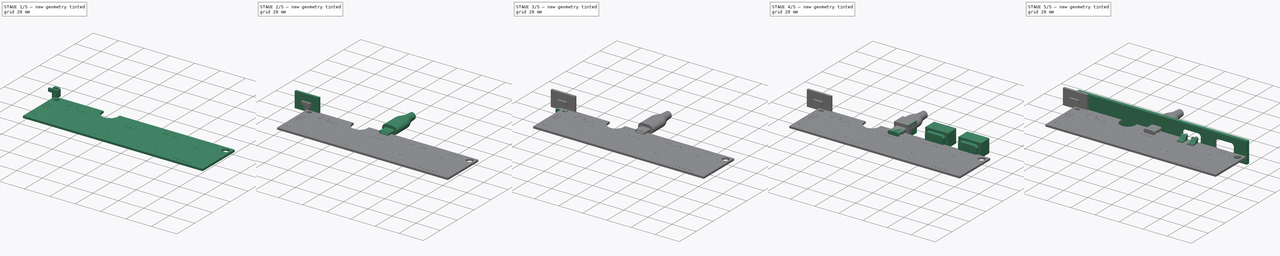
[diagram: build sequence overview — one tinted view per stage of 5, left to right]
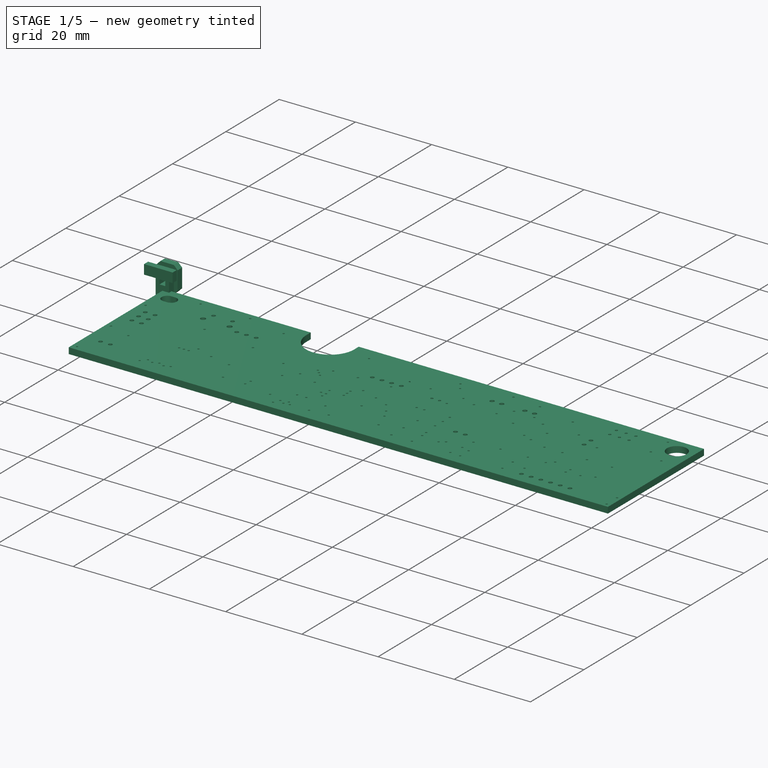
[diagram: stage 1 of 5 — iso view after this stage's code; geometry added in this stage tinted green]
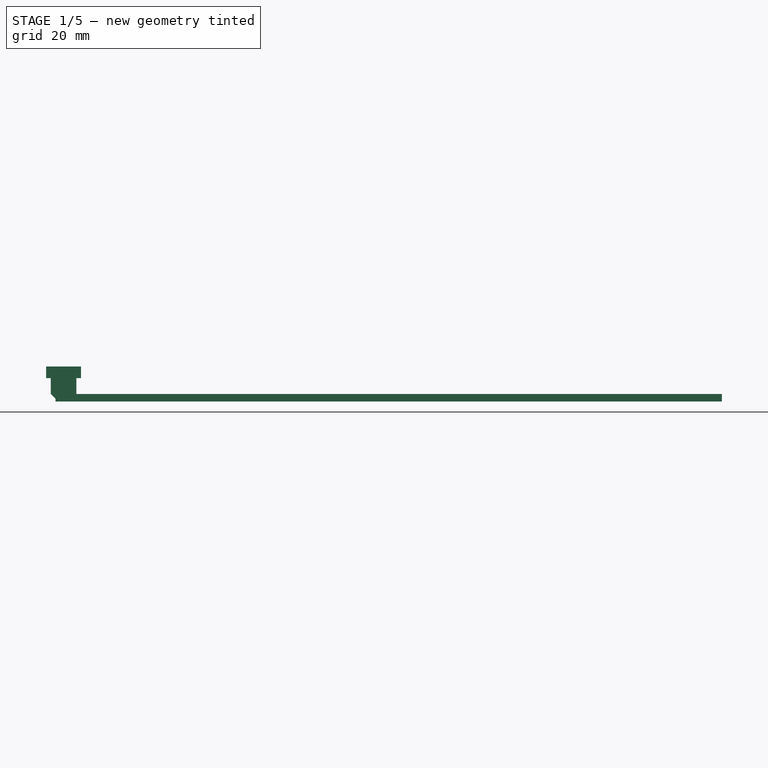
[diagram: stage 1 of 5 — front view after this stage's code; geometry added in this stage tinted green]
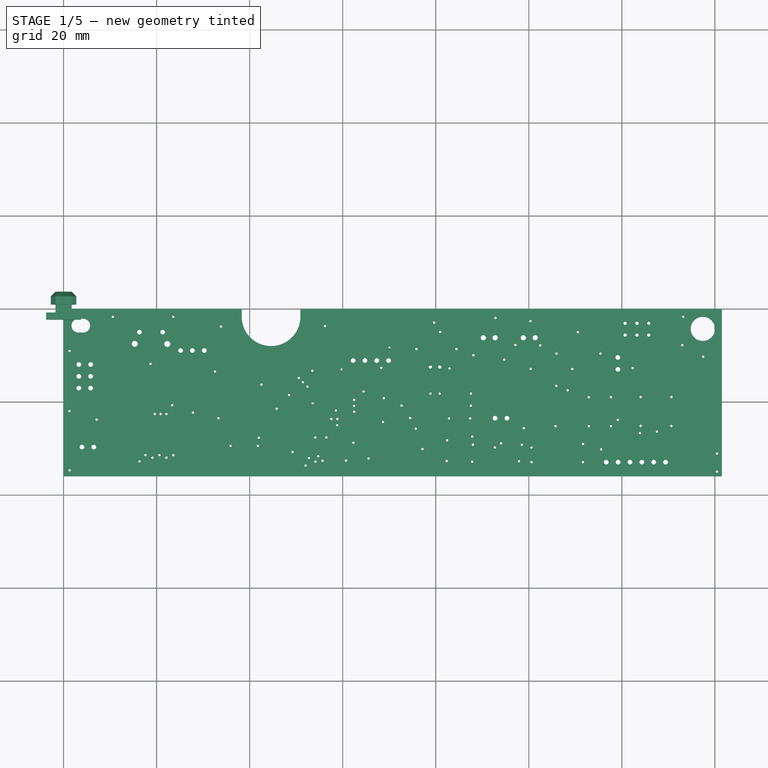
[diagram: stage 1 of 5 — top view after this stage's code; geometry added in this stage tinted green]
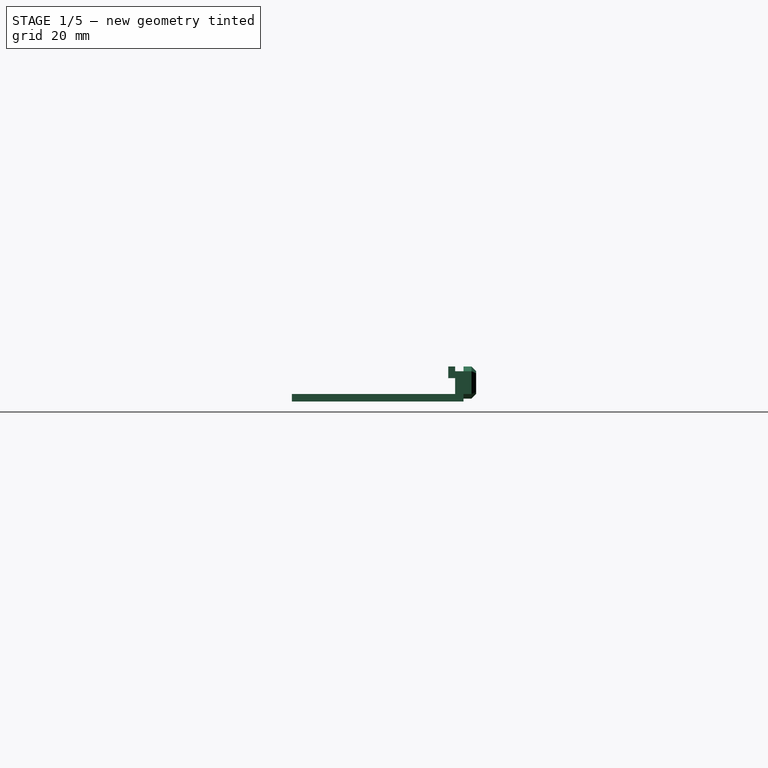
[diagram: stage 1 of 5 — right view after this stage's code; geometry added in this stage tinted green]
FCSTD DOCUMENT  (FreeCAD 0.17R13509 (Git))
Label: hhkb-alt-cad-1.8
License: All rights reserved
LicenseURL: http://en.wikipedia.org/wiki/All_rights_reserved
objects: Sketcher::SketchObject×32, PartDesign::Pad×21, PartDesign::Body×14, Part::FeaturePython×11, PartDesign::Chamfer×5, PartDesign::Mirrored×4, PartDesign::Pocket×3, App::Part×2, App::VRMLObject×2, PartDesign::AdditiveLoft×2, App::DocumentObjectGroup×2, PartDesign::MultiTransform×1, PartDesign::Fillet×1, PartDesign::Revolution×1, Part::MultiFuse×1, Part::Cut×1, PartDesign::Thickness×1, PartDesign::AdditivePipe×1, PartDesign::Plane×1
note: 128 computed .brp shape members not serialized (recipe doc carries the construction recipe); baked Part::Feature solids carry a one-line shape summary decoded from their .brp

FEATURE [Sketcher::SketchObject] PCB_Border  label="PCB_Border_HHKB"
  MapMode = 5
  Placement = pos=(-76.9,80.8,0) rot=(0,0,1;0rad)
  expr: Placement.Base.y = -PCB_Border_HHKB.Constraints.Y
  expr: Placement.Base.x = -PCB_Border_HHKB.Constraints.X
  sketch-geometry (16):
    g0: LineSegment StartX=115.2 StartY=-80.8 StartZ=0 EndX=115.2 EndY=-82.5 EndZ=0
    g1: LineSegment StartX=80.1 StartY=-85.9 StartZ=0 EndX=81.1 EndY=-85.9 EndZ=0
    g2: LineSegment StartX=81.1 StartY=-82.9 StartZ=0 EndX=80.1 EndY=-82.9 EndZ=0
    g3: LineSegment StartX=127.8 StartY=-82.5 StartZ=0 EndX=127.8 EndY=-80.8 EndZ=0
    g4: LineSegment StartX=127.8 StartY=-80.8 StartZ=0 EndX=218.4 EndY=-80.8 EndZ=0
    g5: LineSegment StartX=76.9 StartY=-80.8 StartZ=0 EndX=115.2 EndY=-80.8 EndZ=0
    g6: LineSegment StartX=76.9 StartY=-116.8 StartZ=0 EndX=76.9 EndY=-80.8 EndZ=0
    g7: LineSegment StartX=218.4 StartY=-116.8 StartZ=0 EndX=76.9 EndY=-116.8 EndZ=0
    g8: LineSegment StartX=218.4 StartY=-80.8 StartZ=0 EndX=218.4 EndY=-116.8 EndZ=0
    g9: Circle CenterX=214.3 CenterY=-85.1 CenterZ=0 NormalX=0 NormalY=0 NormalZ=1 AngleXU=0 Radius=2.6
    g10: ArcOfCircle CenterX=81.1 CenterY=-84.4 CenterZ=0 NormalX=0 NormalY=0 NormalZ=1 AngleXU=0 Radius=1.5 StartAngle=0 EndAngle=1.5708
    g11: ArcOfCircle CenterX=81.1 CenterY=-84.4 CenterZ=0 NormalX=0 NormalY=0 NormalZ=1 AngleXU=0 Radius=1.5 StartAngle=4.71239 EndAngle=6.28319
    g12: ArcOfCircle CenterX=80.1 CenterY=-84.4 CenterZ=0 NormalX=0 NormalY=0 NormalZ=1 AngleXU=0 Radius=1.5 StartAngle=3.14159 EndAngle=4.71239
    g13: ArcOfCircle CenterX=80.1 CenterY=-84.4 CenterZ=0 NormalX=0 NormalY=0 NormalZ=1 AngleXU=0 Radius=1.5 StartAngle=1.5708 EndAngle=3.14159
    g14: ArcOfCircle CenterX=121.5 CenterY=-82.5 CenterZ=0 NormalX=0 NormalY=0 NormalZ=1 AngleXU=0 Radius=6.3 StartAngle=3.14159 EndAngle=4.71239
    g15: ArcOfCircle CenterX=121.5 CenterY=-82.5 CenterZ=0 NormalX=0 NormalY=0 NormalZ=1 AngleXU=0 Radius=6.3 StartAngle=4.71239 EndAngle=6.28319
  constraints (2):
    c: DistanceX(g5) = 76.9  'X'
    c: DistanceY(g5) = -80.8  'Y'
FEATURE [Sketcher::SketchObject] PCB_Holes  label="PCB_Holes_HHKB"
  MapMode = 5
  Placement = pos=(-76.9,80.8,0) rot=(0,0,1;0rad)
  expr: Placement.Base.y = -PCB_Border_HHKB.Constraints.Y
  expr: Placement.Base.x = -PCB_Border_HHKB.Constraints.X
  sketch-geometry (160):
    g0: Circle CenterX=196.05 CenterY=-104.65 CenterZ=0 NormalX=0 NormalY=0 NormalZ=1 AngleXU=0 Radius=0.254
    g1: Circle CenterX=170.95 CenterY=-109.7 CenterZ=0 NormalX=0 NormalY=0 NormalZ=1 AngleXU=0 Radius=0.254
    g2: Circle CenterX=174.8 CenterY=-113.55 CenterZ=0 NormalX=0 NormalY=0 NormalZ=1 AngleXU=0 Radius=0.254
    g3: Circle CenterX=139.35 CenterY=-102.9 CenterZ=0 NormalX=0 NormalY=0 NormalZ=1 AngleXU=0 Radius=0.254
    g4: Circle CenterX=96 CenterY=-112.8 CenterZ=0 NormalX=0 NormalY=0 NormalZ=1 AngleXU=0 Radius=0.254
    g5: Circle CenterX=96.5 CenterY=-103.4 CenterZ=0 NormalX=0 NormalY=0 NormalZ=1 AngleXU=0 Radius=0.254
    g6: Circle CenterX=97.5 CenterY=-112.25 CenterZ=0 NormalX=0 NormalY=0 NormalZ=1 AngleXU=0 Radius=0.254
    g7: Circle CenterX=135.43 CenterY=-102.65 CenterZ=0 NormalX=0 NormalY=0 NormalZ=1 AngleXU=0 Radius=0.254
    g8: Circle CenterX=97.75 CenterY=-103.4 CenterZ=0 NormalX=0 NormalY=0 NormalZ=1 AngleXU=0 Radius=0.254
    g9: Circle CenterX=139.35 CenterY=-101.65 CenterZ=0 NormalX=0 NormalY=0 NormalZ=1 AngleXU=0 Radius=0.254
    g10: Circle CenterX=99 CenterY=-112.8 CenterZ=0 NormalX=0 NormalY=0 NormalZ=1 AngleXU=0 Radius=0.254
    g11: Circle CenterX=99 CenterY=-103.4 CenterZ=0 NormalX=0 NormalY=0 NormalZ=1 AngleXU=0 Radius=0.254
    g12: Circle CenterX=100.5 CenterY=-112.25 CenterZ=0 NormalX=0 NormalY=0 NormalZ=1 AngleXU=0 Radius=0.254
    g13: Circle CenterX=139.35 CenterY=-100.35 CenterZ=0 NormalX=0 NormalY=0 NormalZ=1 AngleXU=0 Radius=0.254
    g14: Circle CenterX=94.5 CenterY=-112.25 CenterZ=0 NormalX=0 NormalY=0 NormalZ=1 AngleXU=0 Radius=0.254
    g15: Circle CenterX=134.45 CenterY=-104.46 CenterZ=0 NormalX=0 NormalY=0 NormalZ=1 AngleXU=0 Radius=0.254
    g16: Circle CenterX=130.375 CenterY=-94.1 CenterZ=0 NormalX=0 NormalY=0 NormalZ=1 AngleXU=0 Radius=0.254
    g17: Circle CenterX=125.375 CenterY=-99.3 CenterZ=0 NormalX=0 NormalY=0 NormalZ=1 AngleXU=0 Radius=0.254
    g18: Circle CenterX=118.85 CenterY=-108.5 CenterZ=0 NormalX=0 NormalY=0 NormalZ=1 AngleXU=0 Radius=0.254
    g19: Circle CenterX=122.7 CenterY=-102.25 CenterZ=0 NormalX=0 NormalY=0 NormalZ=1 AngleXU=0 Radius=0.254
    g20: Circle CenterX=204.44 CenterY=-107.18 CenterZ=0 NormalX=0 NormalY=0 NormalZ=1 AngleXU=0 Radius=0.254
    g21: Circle CenterX=155.75 CenterY=-99 CenterZ=0 NormalX=0 NormalY=0 NormalZ=1 AngleXU=0 Radius=0.254
    g22: Circle CenterX=152.6 CenterY=-106.55 CenterZ=0 NormalX=0 NormalY=0 NormalZ=1 AngleXU=0 Radius=0.254
    g23: Circle CenterX=175.85 CenterY=-106.45 CenterZ=0 NormalX=0 NormalY=0 NormalZ=1 AngleXU=0 Radius=0.254
    g24: Circle CenterX=192.45 CenterY=-111 CenterZ=0 NormalX=0 NormalY=0 NormalZ=1 AngleXU=0 Radius=0.254
    g25: Circle CenterX=136.7 CenterY=-93.8 CenterZ=0 NormalX=0 NormalY=0 NormalZ=1 AngleXU=0 Radius=0.254
    g26: Circle CenterX=177.5 CenterY=-110.6 CenterZ=0 NormalX=0 NormalY=0 NormalZ=1 AngleXU=0 Radius=0.254
    g27: Circle CenterX=127.45 CenterY=-95.65 CenterZ=0 NormalX=0 NormalY=0 NormalZ=1 AngleXU=0 Radius=0.254
    g28: Circle CenterX=164.3 CenterY=-104.35 CenterZ=0 NormalX=0 NormalY=0 NormalZ=1 AngleXU=0 Radius=0.254
    g29: Circle CenterX=159.75 CenterY=-104.35 CenterZ=0 NormalX=0 NormalY=0 NormalZ=1 AngleXU=0 Radius=0.254
    g30: Circle CenterX=139.2 CenterY=-109.575 CenterZ=0 NormalX=0 NormalY=0 NormalZ=1 AngleXU=0 Radius=0.254
    g31: Circle CenterX=177.25 CenterY=-83.45 CenterZ=0 NormalX=0 NormalY=0 NormalZ=1 AngleXU=0 Radius=0.254
    g32: Circle CenterX=164.725 CenterY=-113.65 CenterZ=0 NormalX=0 NormalY=0 NormalZ=1 AngleXU=0 Radius=0.254
    g33: Circle CenterX=132.56 CenterY=-113.44 CenterZ=0 NormalX=0 NormalY=0 NormalZ=1 AngleXU=0 Radius=0.254
    g34: Circle CenterX=177.5 CenterY=-113.75 CenterZ=0 NormalX=0 NormalY=0 NormalZ=1 AngleXU=0 Radius=0.254
    g35: Circle CenterX=128.35 CenterY=-96.55 CenterZ=0 NormalX=0 NormalY=0 NormalZ=1 AngleXU=0 Radius=0.254
    g36: Circle CenterX=164.725 CenterY=-108.25 CenterZ=0 NormalX=0 NormalY=0 NormalZ=1 AngleXU=0 Radius=0.254
    g37: Circle CenterX=129.3 CenterY=-97.5 CenterZ=0 NormalX=0 NormalY=0 NormalZ=1 AngleXU=0 Radius=0.254
    g38: Circle CenterX=209.9 CenterY=-88.6 CenterZ=0 NormalX=0 NormalY=0 NormalZ=1 AngleXU=0 Radius=0.254
    g39: Circle CenterX=210.1 CenterY=-82.5 CenterZ=0 NormalX=0 NormalY=0 NormalZ=1 AngleXU=0 Radius=0.254
    g40: Circle CenterX=148.4 CenterY=-88.05 CenterZ=0 NormalX=0 NormalY=0 NormalZ=1 AngleXU=0 Radius=0.254
    g41: Circle CenterX=133.1 CenterY=-84.5 CenterZ=0 NormalX=0 NormalY=0 NormalZ=1 AngleXU=0 Radius=0.254
    g42: Circle CenterX=95.6 CenterY=-92.6 CenterZ=0 NormalX=0 NormalY=0 NormalZ=1 AngleXU=0 Radius=0.254
    g43: Circle CenterX=145.2 CenterY=-93.5 CenterZ=0 NormalX=0 NormalY=0 NormalZ=1 AngleXU=0 Radius=0.254
    g44: Circle CenterX=164.45 CenterY=-101.6 CenterZ=0 NormalX=0 NormalY=0 NormalZ=1 AngleXU=0 Radius=0.254
    g45: Circle CenterX=84 CenterY=-104.6 CenterZ=0 NormalX=0 NormalY=0 NormalZ=1 AngleXU=0 Radius=0.254
    g46: Circle CenterX=182.85 CenterY=-90.4 CenterZ=0 NormalX=0 NormalY=0 NormalZ=1 AngleXU=0 Radius=0.254
    g47: Circle CenterX=179.35 CenterY=-88.65 CenterZ=0 NormalX=0 NormalY=0 NormalZ=1 AngleXU=0 Radius=0.254
    g48: Circle CenterX=149.55 CenterY=-101.6 CenterZ=0 NormalX=0 NormalY=0 NormalZ=1 AngleXU=0 Radius=0.254
    g49: Circle CenterX=164.45 CenterY=-99 CenterZ=0 NormalX=0 NormalY=0 NormalZ=1 AngleXU=0 Radius=0.254
    g50: Circle CenterX=161.35 CenterY=-89.45 CenterZ=0 NormalX=0 NormalY=0 NormalZ=1 AngleXU=0 Radius=0.254
    g51: Circle CenterX=159.35 CenterY=-109.05 CenterZ=0 NormalX=0 NormalY=0 NormalZ=1 AngleXU=0 Radius=0.254
    g52: Circle CenterX=110.75 CenterY=-84.6 CenterZ=0 NormalX=0 NormalY=0 NormalZ=1 AngleXU=0 Radius=0.254
    g53: Circle CenterX=207.57 CenterY=-99.77 CenterZ=0 NormalX=0 NormalY=0 NormalZ=1 AngleXU=0 Radius=0.254
    g54: Circle CenterX=142.45 CenterY=-112.95 CenterZ=0 NormalX=0 NormalY=0 NormalZ=1 AngleXU=0 Radius=0.254
    g55: Circle CenterX=87.5 CenterY=-82.5 CenterZ=0 NormalX=0 NormalY=0 NormalZ=1 AngleXU=0 Radius=0.254
    g56: Circle CenterX=135.7 CenterY=-105.8 CenterZ=0 NormalX=0 NormalY=0 NormalZ=1 AngleXU=0 Radius=0.254
    g57: Circle CenterX=130.45 CenterY=-101.047 CenterZ=0 NormalX=0 NormalY=0 NormalZ=1 AngleXU=0 Radius=0.254
    g58: Circle CenterX=137.6 CenterY=-113.4 CenterZ=0 NormalX=0 NormalY=0 NormalZ=1 AngleXU=0 Radius=0.254
    g59: Circle CenterX=128.92 CenterY=-114.48 CenterZ=0 NormalX=0 NormalY=0 NormalZ=1 AngleXU=0 Radius=0.254
    g60: Circle CenterX=214.375 CenterY=-91.075 CenterZ=0 NormalX=0 NormalY=0 NormalZ=1 AngleXU=0 Radius=0.254
    g61: Circle CenterX=119.425 CenterY=-97.075 CenterZ=0 NormalX=0 NormalY=0 NormalZ=1 AngleXU=0 Radius=0.254
    g62: Circle CenterX=100.5 CenterY=-82.5 CenterZ=0 NormalX=0 NormalY=0 NormalZ=1 AngleXU=0 Radius=0.254
    g63: Circle CenterX=189.8 CenterY=-99.8 CenterZ=0 NormalX=0 NormalY=0 NormalZ=1 AngleXU=0 Radius=0.254
    g64: Circle CenterX=189.8 CenterY=-106 CenterZ=0 NormalX=0 NormalY=0 NormalZ=1 AngleXU=0 Radius=0.254
    g65: Circle CenterX=169.75 CenterY=-82.75 CenterZ=0 NormalX=0 NormalY=0 NormalZ=1 AngleXU=0 Radius=0.254
    g66: Circle CenterX=207.55 CenterY=-105.95 CenterZ=0 NormalX=0 NormalY=0 NormalZ=1 AngleXU=0 Radius=0.254
    g67: Circle CenterX=194.55 CenterY=-106 CenterZ=0 NormalX=0 NormalY=0 NormalZ=1 AngleXU=0 Radius=0.254
    g68: Circle CenterX=200.95 CenterY=-99.75 CenterZ=0 NormalX=0 NormalY=0 NormalZ=1 AngleXU=0 Radius=0.254
    g69: Circle CenterX=194.55 CenterY=-99.8 CenterZ=0 NormalX=0 NormalY=0 NormalZ=1 AngleXU=0 Radius=0.254
    g70: Circle CenterX=200.95 CenterY=-105.95 CenterZ=0 NormalX=0 NormalY=0 NormalZ=1 AngleXU=0 Radius=0.254
    g71: Circle CenterX=188.55 CenterY=-109.85 CenterZ=0 NormalX=0 NormalY=0 NormalZ=1 AngleXU=0 Radius=0.254
    g72: Circle CenterX=188.55 CenterY=-113.75 CenterZ=0 NormalX=0 NormalY=0 NormalZ=1 AngleXU=0 Radius=0.254
    g73: Circle CenterX=182.8 CenterY=-97.35 CenterZ=0 NormalX=0 NormalY=0 NormalZ=1 AngleXU=0 Radius=0.254
    g74: Circle CenterX=186.25 CenterY=-93.7 CenterZ=0 NormalX=0 NormalY=0 NormalZ=1 AngleXU=0 Radius=0.254
    g75: Circle CenterX=185.25 CenterY=-98.3 CenterZ=0 NormalX=0 NormalY=0 NormalZ=1 AngleXU=0 Radius=0.254
    g76: Circle CenterX=156.55 CenterY=-83.75 CenterZ=0 NormalX=0 NormalY=0 NormalZ=1 AngleXU=0 Radius=0.254
    g77: Circle CenterX=152.75 CenterY=-89.45 CenterZ=0 NormalX=0 NormalY=0 NormalZ=1 AngleXU=0 Radius=0.254
    g78: Circle CenterX=164.9 CenterY=-110 CenterZ=0 NormalX=0 NormalY=0 NormalZ=1 AngleXU=0 Radius=0.254
    g79: Circle CenterX=182.65 CenterY=-106 CenterZ=0 NormalX=0 NormalY=0 NormalZ=1 AngleXU=0 Radius=0.254
    g80: Circle CenterX=175.4 CenterY=-110 CenterZ=0 NormalX=0 NormalY=0 NormalZ=1 AngleXU=0 Radius=0.254
    g81: Circle CenterX=169.6 CenterY=-110.6 CenterZ=0 NormalX=0 NormalY=0 NormalZ=1 AngleXU=0 Radius=0.254
    g82: Circle CenterX=93.25 CenterY=-113.6 CenterZ=0 NormalX=0 NormalY=0 NormalZ=1 AngleXU=0 Radius=0.254
    g83: Circle CenterX=78.2 CenterY=-115.5 CenterZ=0 NormalX=0 NormalY=0 NormalZ=1 AngleXU=0 Radius=0.254
    g84: Circle CenterX=78.15 CenterY=-102.75 CenterZ=0 NormalX=0 NormalY=0 NormalZ=1 AngleXU=0 Radius=0.254
    g85: Circle CenterX=78.2 CenterY=-89.85 CenterZ=0 NormalX=0 NormalY=0 NormalZ=1 AngleXU=0 Radius=0.254
    g86: Circle CenterX=118.65 CenterY=-110.25 CenterZ=0 NormalX=0 NormalY=0 NormalZ=1 AngleXU=0 Radius=0.254
    g87: Circle CenterX=112.8 CenterY=-110.25 CenterZ=0 NormalX=0 NormalY=0 NormalZ=1 AngleXU=0 Radius=0.254
    g88: Circle CenterX=217.35 CenterY=-115.8 CenterZ=0 NormalX=0 NormalY=0 NormalZ=1 AngleXU=0 Radius=0.254
    g89: Circle CenterX=217.35 CenterY=-111.9 CenterZ=0 NormalX=0 NormalY=0 NormalZ=1 AngleXU=0 Radius=0.254
    g90: Circle CenterX=171.6 CenterY=-91.7 CenterZ=0 NormalX=0 NormalY=0 NormalZ=1 AngleXU=0 Radius=0.254
    g91: Circle CenterX=165 CenterY=-90.75 CenterZ=0 NormalX=0 NormalY=0 NormalZ=1 AngleXU=0 Radius=0.254
    g92: Circle CenterX=126.1 CenterY=-111.55 CenterZ=0 NormalX=0 NormalY=0 NormalZ=1 AngleXU=0 Radius=0.254
    g93: Circle CenterX=187.45 CenterY=-85.8 CenterZ=0 NormalX=0 NormalY=0 NormalZ=1 AngleXU=0 Radius=0.254
    g94: Circle CenterX=192.3 CenterY=-90.4 CenterZ=0 NormalX=0 NormalY=0 NormalZ=1 AngleXU=0 Radius=0.254
    g95: Circle CenterX=141.4 CenterY=-98.55 CenterZ=0 NormalX=0 NormalY=0 NormalZ=1 AngleXU=0 Radius=0.254
    g96: Circle CenterX=109.45 CenterY=-94.25 CenterZ=0 NormalX=0 NormalY=0 NormalZ=1 AngleXU=0 Radius=0.254
    g97: Circle CenterX=100.25 CenterY=-101.5 CenterZ=0 NormalX=0 NormalY=0 NormalZ=1 AngleXU=0 Radius=0.254
    g98: Circle CenterX=104.7 CenterY=-103.1 CenterZ=0 NormalX=0 NormalY=0 NormalZ=1 AngleXU=0 Radius=0.254
    g99: Circle CenterX=110.2 CenterY=-104.3 CenterZ=0 NormalX=0 NormalY=0 NormalZ=1 AngleXU=0 Radius=0.254
    g100: Circle CenterX=177.3 CenterY=-93.7 CenterZ=0 NormalX=0 NormalY=0 NormalZ=1 AngleXU=0 Radius=0.254
    g101: Circle CenterX=174 CenterY=-88.55 CenterZ=0 NormalX=0 NormalY=0 NormalZ=1 AngleXU=0 Radius=0.254
    g102: Circle CenterX=151.4 CenterY=-104.25 CenterZ=0 NormalX=0 NormalY=0 NormalZ=1 AngleXU=0 Radius=0.254
    g103: Circle CenterX=145.55 CenterY=-105.1 CenterZ=0 NormalX=0 NormalY=0 NormalZ=1 AngleXU=0 Radius=0.254
    g104: Circle CenterX=135.75 CenterY=-104.45 CenterZ=0 NormalX=0 NormalY=0 NormalZ=1 AngleXU=0 Radius=0.254
    g105: Circle CenterX=145.75 CenterY=-100 CenterZ=0 NormalX=0 NormalY=0 NormalZ=1 AngleXU=0 Radius=0.254
    g106: Circle CenterX=129.65 CenterY=-112.87 CenterZ=0 NormalX=0 NormalY=0 NormalZ=1 AngleXU=0 Radius=0.254
    g107: Circle CenterX=199.21 CenterY=-93.52 CenterZ=0 NormalX=0 NormalY=0 NormalZ=1 AngleXU=0 Radius=0.254
    g108: Circle CenterX=159.85 CenterY=-93.6 CenterZ=0 NormalX=0 NormalY=0 NormalZ=1 AngleXU=0 Radius=0.254
    g109: Circle CenterX=157.75 CenterY=-99 CenterZ=0 NormalX=0 NormalY=0 NormalZ=1 AngleXU=0 Radius=0.254
    g110: Circle CenterX=131 CenterY=-108.45 CenterZ=0 NormalX=0 NormalY=0 NormalZ=1 AngleXU=0 Radius=0.254
    g111: Circle CenterX=157.85 CenterY=-85.75 CenterZ=0 NormalX=0 NormalY=0 NormalZ=1 AngleXU=0 Radius=0.254
    g112: Circle CenterX=131.02 CenterY=-113.65 CenterZ=0 NormalX=0 NormalY=0 NormalZ=1 AngleXU=0 Radius=0.254
    g113: Circle CenterX=200.81 CenterY=-107.52 CenterZ=0 NormalX=0 NormalY=0 NormalZ=1 AngleXU=0 Radius=0.254
    g114: Circle CenterX=131.65 CenterY=-112.45 CenterZ=0 NormalX=0 NormalY=0 NormalZ=1 AngleXU=0 Radius=0.254
    g115: Circle CenterX=159.25 CenterY=-113.5 CenterZ=0 NormalX=0 NormalY=0 NormalZ=1 AngleXU=0 Radius=0.254
    g116: Circle CenterX=154.05 CenterY=-110.9 CenterZ=0 NormalX=0 NormalY=0 NormalZ=1 AngleXU=0 Radius=0.254
    g117: Circle CenterX=133.37 CenterY=-108.43 CenterZ=0 NormalX=0 NormalY=0 NormalZ=1 AngleXU=0 Radius=0.254
    g118: Circle CenterX=102.05 CenterY=-89.75 CenterZ=0 NormalX=0 NormalY=0 NormalZ=1 AngleXU=0 Radius=0.508
    g119: Circle CenterX=104.59 CenterY=-89.75 CenterZ=0 NormalX=0 NormalY=0 NormalZ=1 AngleXU=0 Radius=0.508
    g120: Circle CenterX=157.75 CenterY=-93.3 CenterZ=0 NormalX=0 NormalY=0 NormalZ=1 AngleXU=0 Radius=0.35
    g121: Circle CenterX=155.75 CenterY=-93.3 CenterZ=0 NormalX=0 NormalY=0 NormalZ=1 AngleXU=0 Radius=0.35
    g122: Circle CenterX=107.15 CenterY=-89.75 CenterZ=0 NormalX=0 NormalY=0 NormalZ=1 AngleXU=0 Radius=0.508
    g123: Circle CenterX=80.18 CenterY=-92.76 CenterZ=0 NormalX=0 NormalY=0 NormalZ=1 AngleXU=0 Radius=0.508
    g124: Circle CenterX=82.72 CenterY=-92.76 CenterZ=0 NormalX=0 NormalY=0 NormalZ=1 AngleXU=0 Radius=0.508
    g125: Circle CenterX=80.18 CenterY=-95.3 CenterZ=0 NormalX=0 NormalY=0 NormalZ=1 AngleXU=0 Radius=0.508
    g126: Circle CenterX=82.72 CenterY=-95.3 CenterZ=0 NormalX=0 NormalY=0 NormalZ=1 AngleXU=0 Radius=0.508
    g127: Circle CenterX=80.18 CenterY=-97.84 CenterZ=0 NormalX=0 NormalY=0 NormalZ=1 AngleXU=0 Radius=0.508
    g128: Circle CenterX=82.72 CenterY=-97.84 CenterZ=0 NormalX=0 NormalY=0 NormalZ=1 AngleXU=0 Radius=0.508
    g129: Circle CenterX=193.55 CenterY=-113.75 CenterZ=0 NormalX=0 NormalY=0 NormalZ=1 AngleXU=0 Radius=0.508
    g130: Circle CenterX=198.65 CenterY=-113.75 CenterZ=0 NormalX=0 NormalY=0 NormalZ=1 AngleXU=0 Radius=0.508
    g131: Circle CenterX=201.2 CenterY=-113.75 CenterZ=0 NormalX=0 NormalY=0 NormalZ=1 AngleXU=0 Radius=0.508
    g132: Circle CenterX=196.1 CenterY=-113.75 CenterZ=0 NormalX=0 NormalY=0 NormalZ=1 AngleXU=0 Radius=0.508
    g133: Circle CenterX=206.3 CenterY=-113.75 CenterZ=0 NormalX=0 NormalY=0 NormalZ=1 AngleXU=0 Radius=0.508
    g134: Circle CenterX=203.75 CenterY=-113.75 CenterZ=0 NormalX=0 NormalY=0 NormalZ=1 AngleXU=0 Radius=0.508
    g135: Circle CenterX=93.2 CenterY=-85.8 CenterZ=0 NormalX=0 NormalY=0 NormalZ=1 AngleXU=0 Radius=0.5
    g136: Circle CenterX=98.2 CenterY=-85.8 CenterZ=0 NormalX=0 NormalY=0 NormalZ=1 AngleXU=0 Radius=0.5
    g137: Circle CenterX=92.2 CenterY=-88.3 CenterZ=0 NormalX=0 NormalY=0 NormalZ=1 AngleXU=0 Radius=0.65
    g138: Circle CenterX=99.2 CenterY=-88.35 CenterZ=0 NormalX=0 NormalY=0 NormalZ=1 AngleXU=0 Radius=0.65
    g139: Circle CenterX=146.75 CenterY=-91.9 CenterZ=0 NormalX=0 NormalY=0 NormalZ=1 AngleXU=0 Radius=0.508
    g140: Circle CenterX=144.216 CenterY=-91.903 CenterZ=0 NormalX=0 NormalY=0 NormalZ=1 AngleXU=0 Radius=0.508
    g141: Circle CenterX=141.676 CenterY=-91.903 CenterZ=0 NormalX=0 NormalY=0 NormalZ=1 AngleXU=0 Radius=0.508
    g142: Circle CenterX=139.136 CenterY=-91.903 CenterZ=0 NormalX=0 NormalY=0 NormalZ=1 AngleXU=0 Radius=0.508
    g143: Circle CenterX=197.61 CenterY=-83.89 CenterZ=0 NormalX=0 NormalY=0 NormalZ=1 AngleXU=0 Radius=0.35
    g144: Circle CenterX=202.69 CenterY=-83.89 CenterZ=0 NormalX=0 NormalY=0 NormalZ=1 AngleXU=0 Radius=0.35
    g145: Circle CenterX=200.15 CenterY=-83.89 CenterZ=0 NormalX=0 NormalY=0 NormalZ=1 AngleXU=0 Radius=0.35
    g146: Circle CenterX=200.15 CenterY=-86.43 CenterZ=0 NormalX=0 NormalY=0 NormalZ=1 AngleXU=0 Radius=0.35
    g147: Circle CenterX=202.69 CenterY=-86.43 CenterZ=0 NormalX=0 NormalY=0 NormalZ=1 AngleXU=0 Radius=0.35
    g148: Circle CenterX=197.61 CenterY=-86.43 CenterZ=0 NormalX=0 NormalY=0 NormalZ=1 AngleXU=0 Radius=0.35
    g149: Circle CenterX=167.13 CenterY=-87 CenterZ=0 NormalX=0 NormalY=0 NormalZ=1 AngleXU=0 Radius=0.559
    g150: Circle CenterX=169.67 CenterY=-87 CenterZ=0 NormalX=0 NormalY=0 NormalZ=1 AngleXU=0 Radius=0.559
    g151: Circle CenterX=175.73 CenterY=-87 CenterZ=0 NormalX=0 NormalY=0 NormalZ=1 AngleXU=0 Radius=0.559
    g152: Circle CenterX=178.27 CenterY=-87 CenterZ=0 NormalX=0 NormalY=0 NormalZ=1 AngleXU=0 Radius=0.559
    g153: Circle CenterX=80.85 CenterY=-110.5 CenterZ=0 NormalX=0 NormalY=0 NormalZ=1 AngleXU=0 Radius=0.508
    g154: Circle CenterX=83.4 CenterY=-110.5 CenterZ=0 NormalX=0 NormalY=0 NormalZ=1 AngleXU=0 Radius=0.508
    g155: Circle CenterX=146.75 CenterY=-89.35 CenterZ=0 NormalX=0 NormalY=0 NormalZ=1 AngleXU=0 Radius=0.508
    g156: Circle CenterX=172.2 CenterY=-104.3 CenterZ=0 NormalX=0 NormalY=0 NormalZ=1 AngleXU=0 Radius=0.508
    g157: Circle CenterX=196.05 CenterY=-91.25 CenterZ=0 NormalX=0 NormalY=0 NormalZ=1 AngleXU=0 Radius=0.508
    g158: Circle CenterX=169.65 CenterY=-104.3 CenterZ=0 NormalX=0 NormalY=0 NormalZ=1 AngleXU=0 Radius=0.508
    g159: Circle CenterX=196.05 CenterY=-93.8 CenterZ=0 NormalX=0 NormalY=0 NormalZ=1 AngleXU=0 Radius=0.508
FEATURE [PartDesign::Pad] Pad
  Length = 1.6
  Length2 = 100
  Placement = pos=(-76.9,80.8,0) rot=(0,0,1;0rad)
  Profile = -> PCB_Border
  Type = 0
FEATURE [PartDesign::Pocket] Pocket
  BaseFeature = -> Pad
  Length = 5
  Length2 = 100
  Midplane = true
  Placement = pos=(-76.9,80.8,0) rot=(0,0,1;0rad)
  Profile = -> PCB_Holes
  Type = 1
FEATURE [PartDesign::Body] Body001  label="BodyCaseRear"
  Group = -> [Sketch,Pad001]
  Origin = -> Origin001
  Placement = pos=(0,0.9,0) rot=(0,0,1;0rad)
  Tip = -> Pad001
FEATURE [Sketcher::SketchObject] PCB_Border001  label="PCB_Border_USB-C"
  MapMode = 5
  Placement = pos=(-76.9,80.8,0) rot=(0,0,1;0rad)
  expr: Placement.Base.y = -PCB_Border_HHKB.Constraints.Y
  expr: Placement.Base.x = -PCB_Border_HHKB.Constraints.X
  sketch-geometry (20):
    g0: LineSegment StartX=138.036 StartY=-93.173 StartZ=0 EndX=136.576 EndY=-93.173 EndZ=0
    g1: LineSegment StartX=147.856 StartY=-93.173 StartZ=0 EndX=149.45 EndY=-93.173 EndZ=0
    g2: LineSegment StartX=147.856 StartY=-91.8972 StartZ=0 EndX=147.856 EndY=-93.173 EndZ=0
    g3: LineSegment StartX=138.036 StartY=-91.8972 StartZ=0 EndX=147.856 EndY=-91.8972 EndZ=0
    g4: LineSegment StartX=138.036 StartY=-93.173 StartZ=0 EndX=138.036 EndY=-91.8972 EndZ=0
    g5: LineSegment StartX=148.13 StartY=-89.265 StartZ=0 EndX=148.13 EndY=-87.365 EndZ=0
    g6: LineSegment StartX=146.78 StartY=-89.265 StartZ=0 EndX=148.13 EndY=-89.265 EndZ=0
    g7: LineSegment StartX=146.78 StartY=-87.365 StartZ=0 EndX=146.78 EndY=-89.265 EndZ=0
    g8: LineSegment StartX=148.13 StartY=-87.365 StartZ=0 EndX=146.78 EndY=-87.365 EndZ=0
    g9: LineSegment StartX=138.69 StartY=-87.365 StartZ=0 EndX=138.69 EndY=-89.265 EndZ=0
    g10: LineSegment StartX=140.04 StartY=-87.365 StartZ=0 EndX=138.69 EndY=-87.365 EndZ=0
    g11: LineSegment StartX=140.04 StartY=-89.265 StartZ=0 EndX=140.04 EndY=-87.365 EndZ=0
    g12: LineSegment StartX=138.69 StartY=-89.265 StartZ=0 EndX=140.04 EndY=-89.265 EndZ=0
    g13: LineSegment StartX=138.938 StartY=-80.8 StartZ=0 EndX=147.828 EndY=-80.8 EndZ=0
    g14: LineSegment StartX=138.938 StartY=-85.3 StartZ=0 EndX=136.576 EndY=-85.3 EndZ=0
    g15: LineSegment StartX=138.938 StartY=-80.8 StartZ=0 EndX=138.938 EndY=-85.3 EndZ=0
    g16: LineSegment StartX=147.828 StartY=-85.3 StartZ=0 EndX=149.45 EndY=-85.3 EndZ=0
    g17: LineSegment StartX=147.828 StartY=-80.8 StartZ=0 EndX=147.828 EndY=-85.3 EndZ=0
    g18: LineSegment StartX=149.45 StartY=-85.3 StartZ=0 EndX=149.45 EndY=-93.173 EndZ=0
    g19: LineSegment StartX=136.576 StartY=-93.173 StartZ=0 EndX=136.576 EndY=-85.3 EndZ=0
  constraints (2):
    c: DistanceX(g13) = 138.938  'X'
    c: DistanceY(g14) = -85.3  'Y'
FEATURE [Sketcher::SketchObject] PCB_Holes001  label="PCB_Holes_USB-C"
  MapMode = 5
  Placement = pos=(-76.9,80.8,0) rot=(0,0,1;0rad)
  expr: Placement.Base.y = -PCB_Border_HHKB.Constraints.Y
  expr: Placement.Base.x = -PCB_Border_HHKB.Constraints.X
  sketch-geometry (21):
    g0: Circle CenterX=141.723 CenterY=-90.227 CenterZ=0 NormalX=0 NormalY=0 NormalZ=1 AngleXU=0 Radius=0.165
    g1: Circle CenterX=137.351 CenterY=-91.44 CenterZ=0 NormalX=0 NormalY=0 NormalZ=1 AngleXU=0 Radius=0.165
    g2: Circle CenterX=144.04 CenterY=-88.19 CenterZ=0 NormalX=0 NormalY=0 NormalZ=1 AngleXU=0 Radius=0.165
    g3: Circle CenterX=143.002 CenterY=-89.853 CenterZ=0 NormalX=0 NormalY=0 NormalZ=1 AngleXU=0 Radius=0.165
    g4: Circle CenterX=143.561 CenterY=-90.818 CenterZ=0 NormalX=0 NormalY=0 NormalZ=1 AngleXU=0 Radius=0.165
    g5: Circle CenterX=142.04 CenterY=-88.19 CenterZ=0 NormalX=0 NormalY=0 NormalZ=1 AngleXU=0 Radius=0.165
    g6: Circle CenterX=144.79 CenterY=-88.19 CenterZ=0 NormalX=0 NormalY=0 NormalZ=1 AngleXU=0 Radius=0.165
    g7: Circle CenterX=144.335 CenterY=-90.436 CenterZ=0 NormalX=0 NormalY=0 NormalZ=1 AngleXU=0 Radius=0.165
    g8: Circle CenterX=148.65 CenterY=-91.44 CenterZ=0 NormalX=0 NormalY=0 NormalZ=1 AngleXU=0 Radius=0.165
    g9: Circle CenterX=142.79 CenterY=-88.19 CenterZ=0 NormalX=0 NormalY=0 NormalZ=1 AngleXU=0 Radius=0.165
    g10: Circle CenterX=139.51 CenterY=-90.678 CenterZ=0 NormalX=0 NormalY=0 NormalZ=1 AngleXU=0 Radius=0.165
    g11: Circle CenterX=147.01 CenterY=-86.315 CenterZ=0 NormalX=0 NormalY=0 NormalZ=1 AngleXU=0 Radius=0.3
    g12: Circle CenterX=139.81 CenterY=-86.315 CenterZ=0 NormalX=0 NormalY=0 NormalZ=1 AngleXU=0 Radius=0.3
    g13: Circle CenterX=147.505 CenterY=-88.315 CenterZ=0 NormalX=0 NormalY=0 NormalZ=1 AngleXU=0 Radius=0.508
    g14: Circle CenterX=139.315 CenterY=-88.315 CenterZ=0 NormalX=0 NormalY=0 NormalZ=1 AngleXU=0 Radius=0.508
    g15: Circle CenterX=138.252 CenterY=-83.265 CenterZ=0 NormalX=0 NormalY=0 NormalZ=1 AngleXU=0 Radius=1.25
    g16: Circle CenterX=148.57 CenterY=-83.265 CenterZ=0 NormalX=0 NormalY=0 NormalZ=1 AngleXU=0 Radius=1.25
    g17: Circle CenterX=139.136 CenterY=-91.903 CenterZ=0 NormalX=0 NormalY=0 NormalZ=1 AngleXU=0 Radius=0.508
    g18: Circle CenterX=141.676 CenterY=-91.903 CenterZ=0 NormalX=0 NormalY=0 NormalZ=1 AngleXU=0 Radius=0.508
    g19: Circle CenterX=144.216 CenterY=-91.903 CenterZ=0 NormalX=0 NormalY=0 NormalZ=1 AngleXU=0 Radius=0.508
    g20: Circle CenterX=146.756 CenterY=-91.903 CenterZ=0 NormalX=0 NormalY=0 NormalZ=1 AngleXU=0 Radius=0.508
FEATURE [PartDesign::Pad] Pad002
  Length = 1.6
  Length2 = 100
  Placement = pos=(-76.9,80.8,0) rot=(0,0,1;0rad)
  Profile = -> PCB_Border001
  Type = 0
FEATURE [PartDesign::Pocket] Pocket001
  BaseFeature = -> Pad002
  Length = 5
  Length2 = 100
  Midplane = true
  Placement = pos=(-76.9,80.8,0) rot=(0,0,1;0rad)
  Profile = -> PCB_Holes001
  Type = 1
FEATURE [PartDesign::Body] Body012  label="BodySS22SDH2cover"
  Group = -> [Sketch028,Pad022]
  Origin = -> Origin014
  Placement = pos=(123.25,0,0) rot=(0,0,1;0rad)
  Tip = -> Pad022
  expr: Placement.Base.x = Port2.Placement.Base.x
FEATURE [Sketcher::SketchObject] Sketch029  label="CapCenter"
  MapMode = 5
  Placement = pos=(0,0,0) rot=(1,0,0;1.5708rad)
  Support = -> [XZ_Plane015]
  sketch-geometry (4):
    g0: LineSegment StartX=-1.75 StartY=0 StartZ=0 EndX=1.75 EndY=0 EndZ=0
    g1: LineSegment StartX=1.75 StartY=0 StartZ=0 EndX=1.75 EndY=6.5 EndZ=0
    g2: LineSegment StartX=1.75 StartY=6.5 StartZ=0 EndX=-1.75 EndY=6.5 EndZ=0
    g3: LineSegment StartX=-1.75 StartY=6.5 StartZ=0 EndX=-1.75 EndY=0 EndZ=0
  constraints (12):
    c: Coincident(g0,g1)
    c: Coincident(g1,g2)
    c: Coincident(g2,g3)
    c: Coincident(g3,g0)
    c: Horizontal(g0)
    c: Horizontal(g2)
    c: Vertical(g1)
    c: Vertical(g3)
    c: PointOnObject(g0,g-1)
    c: Symmetric(g2,g1,g-2)
    c: DistanceX(g2,g2) = 3.5  'X'
    c: DistanceY(g3,g3) = 6.5  'Z'
FEATURE [PartDesign::Pad] Pad023  label="PadCapCenter"
  Length = 1.8
  Length2 = 100
  Midplane = true
  Placement = pos=(0,0,0) rot=(1,0,0;1.5708rad)
  Profile = -> Sketch029
  Type = 0
FEATURE [Sketcher::SketchObject] Sketch030  label="CapSupport"
  MapMode = 5
  Placement = pos=(0,-0.9,0) rot=(1,0,0;1.5708rad)
  Support = -> [Pad023]
  sketch-geometry (4):
    g0: LineSegment StartX=-3.75 StartY=7.5 StartZ=0 EndX=3.75 EndY=7.5 EndZ=0
    g1: LineSegment StartX=3.75 StartY=7.5 StartZ=0 EndX=3.75 EndY=5 EndZ=0
    g2: LineSegment StartX=3.75 StartY=5 StartZ=0 EndX=-3.75 EndY=5 EndZ=0
    g3: LineSegment StartX=-3.75 StartY=5 StartZ=0 EndX=-3.75 EndY=7.5 EndZ=0
  constraints (12):
    c: Coincident(g0,g1)
    c: Coincident(g1,g2)
    c: Coincident(g2,g3)
    c: Coincident(g3,g0)
    c: Horizontal(g0)
    c: Horizontal(g2)
    c: Vertical(g1)
    c: Vertical(g3)
    c: Symmetric(g0,g0,g-2)
    c: DistanceY(g2) = 5  'OffsetZ'
    c: DistanceY(g3,g3) = 2.5  'Z'
    c: DistanceX(g0,g0) = 7.5  'X'
FEATURE [PartDesign::Pad] Pad024  label="PadCapSupport"
  BaseFeature = -> Pad023
  Length = 1.5
  Length2 = 100
  Placement = pos=(0,0,0) rot=(1,0,0;1.5708rad)
  Profile = -> Sketch030
  Type = 0
FEATURE [Sketcher::SketchObject] Sketch032  label="CapSwitchHole"
  AttachmentOffset = pos=(0,0,0.9) rot=(0,0,1;0rad)
  MapMode = 5
  Placement = pos=(0,-0.9,0) rot=(1,0,0;1.5708rad)
  Support = -> [XZ_Plane015]
  expr: AttachmentOffset.Base.z = PadCapCenter.Length / 2
  sketch-geometry (5):
    g0: LineSegment StartX=-0.75 StartY=4.1 StartZ=0 EndX=0.75 EndY=4.1 EndZ=0
    g1: LineSegment StartX=0.75 StartY=4.1 StartZ=0 EndX=0.75 EndY=2.9 EndZ=0
    g2: LineSegment StartX=0.75 StartY=2.9 StartZ=0 EndX=-0.75 EndY=2.9 EndZ=0
    g3: LineSegment StartX=-0.75 StartY=2.9 StartZ=0 EndX=-0.75 EndY=4.1 EndZ=0
    g4: GeomPoint X=0.75 Y=3.5 Z=0
  constraints (13):
    c: Coincident(g0,g1)
    c: Coincident(g1,g2)
    c: Coincident(g2,g3)
    c: Coincident(g3,g0)
    c: Horizontal(g0)
    c: Horizontal(g2)
    c: Vertical(g1)
    c: Vertical(g3)
    c: Symmetric(g0,g0,g-2)
    c: DistanceX(g0,g0) = 1.5  'X'
    c: DistanceY(g3,g3) = 1.2  'Z'
    c: Symmetric(g1,g0,g4)
    c: DistanceY(g4) = 3.5  'CenterOffsetZ'
FEATURE [PartDesign::Plane] DatumPlane  label="DatumPlaneCap"
  AttachmentOffset = pos=(0,0,0) rot=(0,0,1;3.14159rad)
  MapMode = 5
  Placement = pos=(0,0.9,0) rot=(0,0.707107,0.707107;3.14159rad)
  Support = -> [Pad024]
FEATURE [Sketcher::SketchObject] Sketch033  label="Cap"
  MapMode = 5
  Placement = pos=(0,0.9,0) rot=(0,0.707107,0.707107;3.14159rad)
  Support = -> [DatumPlane]
  sketch-geometry (13):
    g0: LineSegment StartX=-1.75 StartY=7.5 StartZ=0 EndX=1.75 EndY=7.5 EndZ=0
    g1: LineSegment [constr] StartX=1.75 StartY=7.5 StartZ=0 EndX=1.75 EndY=0.6 EndZ=0
    g2: LineSegment StartX=1.75 StartY=0.6 StartZ=0 EndX=-1.75 EndY=0.6 EndZ=0
    g3: LineSegment [constr] StartX=-1.75 StartY=0.6 StartZ=0 EndX=-1.75 EndY=7.5 EndZ=0
    g4: LineSegment [constr] StartX=-2.75 StartY=6.5 StartZ=0 EndX=2.75 EndY=6.5 EndZ=0
    g5: LineSegment StartX=2.75 StartY=6.5 StartZ=0 EndX=2.75 EndY=1.6 EndZ=0
    g6: LineSegment [constr] StartX=2.75 StartY=1.6 StartZ=0 EndX=-2.75 EndY=1.6 EndZ=0
    g7: LineSegment StartX=-2.75 StartY=1.6 StartZ=0 EndX=-2.75 EndY=6.5 EndZ=0
    g8: LineSegment StartX=-2.75 StartY=6.5 StartZ=0 EndX=-1.75 EndY=7.5 EndZ=0
    g9: LineSegment StartX=1.75 StartY=7.5 StartZ=0 EndX=2.75 EndY=6.5 EndZ=0
    g10: LineSegment StartX=-2.75 StartY=1.6 StartZ=0 EndX=-1.75 EndY=0.6 EndZ=0
    g11: LineSegment StartX=1.75 StartY=0.6 StartZ=0 EndX=2.75 EndY=1.6 EndZ=0
    g12: LineSegment [constr] StartX=2.75 StartY=4.05 StartZ=0 EndX=-2.75 EndY=4.05 EndZ=0
  constraints (35):
    c: Coincident(g0,g1)
    c: Coincident(g1,g2)
    c: Coincident(g2,g3)
    c: Coincident(g3,g0)
    c: Horizontal(g0)
    c: Horizontal(g2)
    c: Vertical(g1)
    c: Vertical(g3)
    c: Coincident(g4,g5)
    c: Coincident(g5,g6)
    c: Coincident(g6,g7)
    c: Coincident(g7,g4)
    c: Horizontal(g4)
    c: Horizontal(g6)
    c: Vertical(g5)
    c: Vertical(g7)
    c: Coincident(g8,g4)
    c: Coincident(g8,g0)
    c: Coincident(g9,g0)
    c: Coincident(g9,g4)
    c: Coincident(g10,g6)
    c: Coincident(g10,g2)
    c: Coincident(g11,g1)
    c: Coincident(g5,g11)
    c: Symmetric(g0,g0,g-2)
    c: Symmetric(g4,g4,g-2)
    c: PointOnObject(g12,g5)
    c: Horizontal(g12)
    c: Symmetric(g6,g4,g12)
    c: Symmetric(g0,g2,g12)
    c: Angle(g7,g8) = 2.35619
    c: DistanceX(g4,g0) = 1  'CornerChamfer'
    c: DistanceY(g2) = 0.6  'OffsetZ'
    c: DistanceX(g4,g4) = 5.5  'X'
    c: DistanceY(g2,g0) = 6.9  'Z'
FEATURE [PartDesign::Pad] Pad025  label="PadCap"
  BaseFeature = -> Pad024
  Length = 2.7
  Length2 = 100
  Placement = pos=(0,0,0) rot=(1,0,0;1.5708rad)
  Profile = -> Sketch033
  Type = 0
FEATURE [PartDesign::Pocket] Pocket002  label="PocketCapSwitchHole"
  BaseFeature = -> Pad025
  Length = 2.5
  Length2 = 100
  Placement = pos=(0,0,0) rot=(1,0,0;1.5708rad)
  Profile = -> Sketch032
  Type = 0
FEATURE [PartDesign::Chamfer] Chamfer004  label="ChamferCapFront"
  Base = -> Pocket002 [Face25]
  BaseFeature = -> Pocket002
  Placement = pos=(0,0,0) rot=(1,0,0;1.5708rad)
  Size = 1
FEATURE [PartDesign::Body] Body013  label="BodySS22SDH2cap"
  Group = -> [Sketch029,Pad023,Sketch030,Pad024,Sketch032,DatumPlane,Sketch033,Pad025,Pocket002,Chamfer004]
  Origin = -> Origin015
  Placement = pos=(123.25,0,0) rot=(0,0,1;0rad)
  Tip = -> Chamfer004
  expr: Placement.Base.x = Port2.Placement.Base.x
FEATURE [App::DocumentObjectGroup] Group001  label="PCB"
  Group = -> [Body,Body002,HHKB_controller,usb_type_c_hhkb]
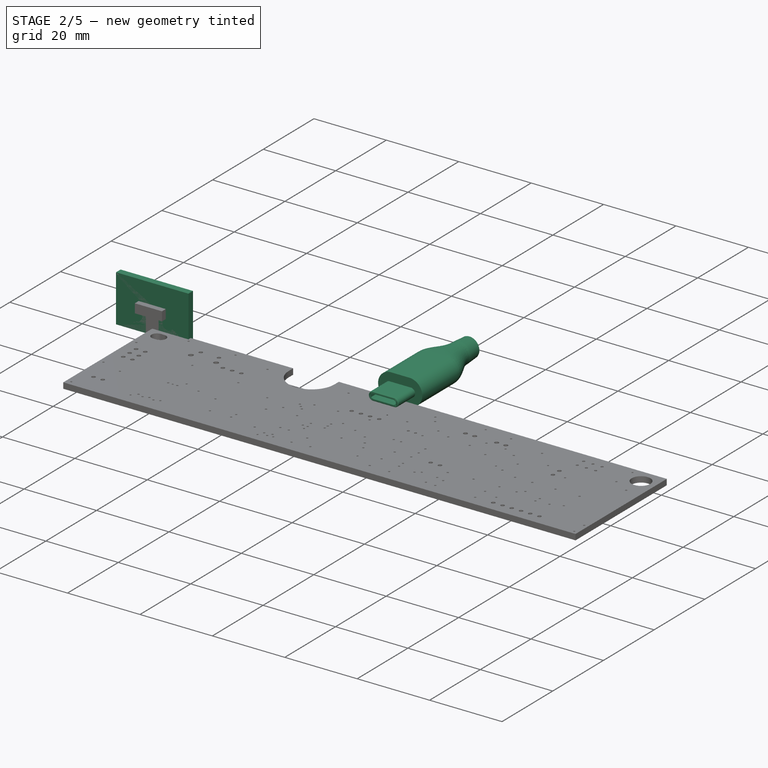
[diagram: stage 2 of 5 — iso view after this stage's code; geometry added in this stage tinted green]
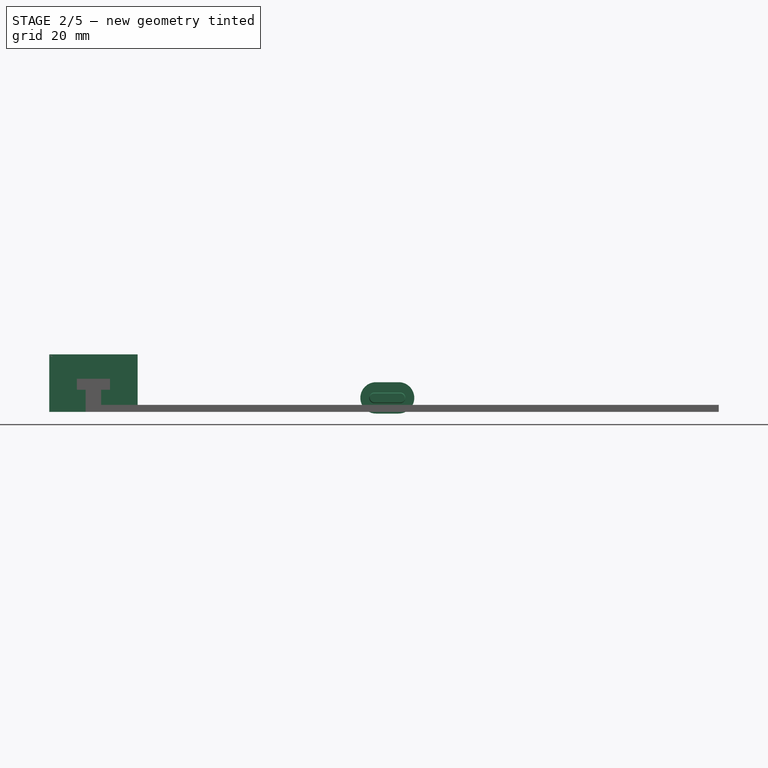
[diagram: stage 2 of 5 — front view after this stage's code; geometry added in this stage tinted green]
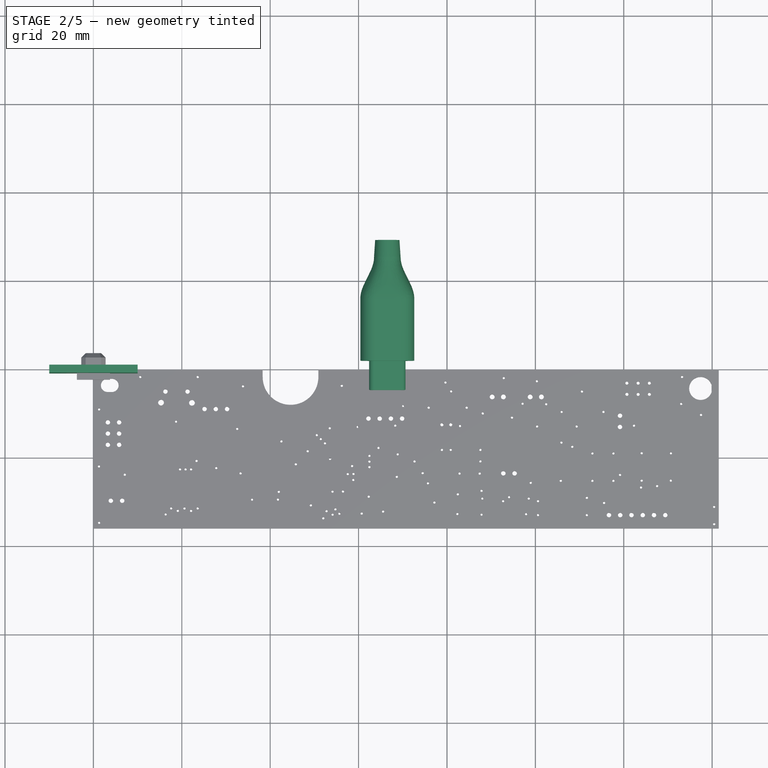
[diagram: stage 2 of 5 — top view after this stage's code; geometry added in this stage tinted green]
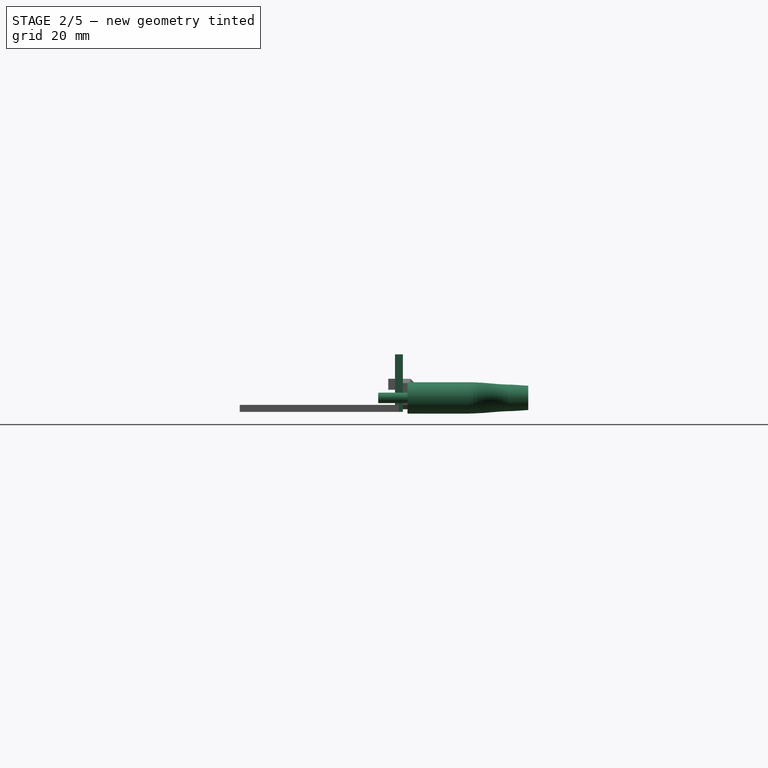
[diagram: stage 2 of 5 — right view after this stage's code; geometry added in this stage tinted green]
FEATURE [Sketcher::SketchObject] Sketch009  label="Overmold1"
  AttachmentOffset = pos=(0,0,14) rot=(0,0,1;0rad)
  MapMode = 5
  Placement = pos=(0,0,14) rot=(0,0,1;0rad)
  Support = -> [XY_Plane011]
  sketch-geometry (6):
    g0: ArcOfCircle CenterX=-2.55 CenterY=0 CenterZ=0 NormalX=0 NormalY=0 NormalZ=1 AngleXU=0 Radius=3.55 StartAngle=1.5708 EndAngle=4.71239
    g1: ArcOfCircle CenterX=2.55 CenterY=0 CenterZ=0 NormalX=0 NormalY=0 NormalZ=1 AngleXU=0 Radius=3.55 StartAngle=4.71239 EndAngle=7.85398
    g2: LineSegment StartX=-2.55 StartY=-3.55 StartZ=0 EndX=2.55 EndY=-3.55 EndZ=0
    g3: LineSegment StartX=-2.55 StartY=3.55 StartZ=0 EndX=2.55 EndY=3.55 EndZ=0
    g4: GeomPoint X=-6.1 Y=0 Z=0
    g5: GeomPoint X=6.1 Y=0 Z=0
  constraints (13):
    c: Tangent(g0,g3) = 1.5708
    c: Tangent(g0,g2) = -1.5708
    c: Tangent(g2,g1) = -1.5708
    c: Tangent(g3,g1) = 1.5708
    c: Horizontal(g2)
    c: Equal(g0,g1)
    c: Symmetric(g0,g1,g-1)
    c: PointOnObject(g4,g0)
    c: PointOnObject(g5,g1)
    c: PointOnObject(g4,g-1)
    c: PointOnObject(g5,g-1)
    c: DistanceX(g4,g5) = 12.2  'Width'
    c: DistanceY(g0,g0) = 7.1  'Height'
FEATURE [Sketcher::SketchObject] Sketch012  label="Overmold4"
  AttachmentOffset = pos=(0,0,23.5) rot=(0,0,1;0rad)
  MapMode = 5
  Placement = pos=(0,0,23.5) rot=(0,0,1;0rad)
  Support = -> [XY_Plane011]
  expr: Constraints[1] = <<3>>.Constraints[1]
  sketch-geometry (1):
    g0: Circle CenterX=0 CenterY=0 CenterZ=0 NormalX=0 NormalY=0 NormalZ=1 AngleXU=0 Radius=3
  constraints (2):
    c: Coincident(g0,g-1)
    c: Radius(g0) = 3
FEATURE [Sketcher::SketchObject] Sketch011  label="Overmold2"
  AttachmentOffset = pos=(0,0,14.2) rot=(0,0,1;0rad)
  MapMode = 5
  Placement = pos=(0,0,14.2) rot=(0,0,1;0rad)
  Support = -> [XY_Plane011]
  sketch-geometry (6):
    g0: ArcOfCircle CenterX=-2.55 CenterY=0 CenterZ=0 NormalX=0 NormalY=0 NormalZ=1 AngleXU=0 Radius=3.55 StartAngle=1.5708 EndAngle=4.71239
    g1: ArcOfCircle CenterX=2.55 CenterY=0 CenterZ=0 NormalX=0 NormalY=0 NormalZ=1 AngleXU=0 Radius=3.55 StartAngle=4.71239 EndAngle=7.85398
    g2: LineSegment StartX=-2.55 StartY=-3.55 StartZ=0 EndX=2.55 EndY=-3.55 EndZ=0
    g3: LineSegment StartX=-2.55 StartY=3.55 StartZ=0 EndX=2.55 EndY=3.55 EndZ=0
    g4: GeomPoint X=-6.1 Y=0 Z=0
    g5: GeomPoint X=6.1 Y=0 Z=0
  constraints (13):
    c: Tangent(g0,g3) = 1.5708
    c: Tangent(g0,g2) = -1.5708
    c: Tangent(g2,g1) = -1.5708
    c: Tangent(g3,g1) = 1.5708
    c: Horizontal(g2)
    c: Equal(g0,g1)
    c: Symmetric(g0,g1,g-1)
    c: PointOnObject(g4,g0)
    c: PointOnObject(g5,g1)
    c: PointOnObject(g4,g-1)
    c: PointOnObject(g5,g-1)
    c: DistanceX(g4,g5) = 12.2  'Width'
    c: DistanceY(g0,g0) = 7.1  'Height'
FEATURE [Sketcher::SketchObject] Sketch010  label="Overmold5"
  AttachmentOffset = pos=(0,0,27.3) rot=(0,0,1;0rad)
  MapMode = 5
  Placement = pos=(0,0,27.3) rot=(0,0,1;0rad)
  Support = -> [XY_Plane011]
  sketch-geometry (1):
    g0: Circle CenterX=0 CenterY=0 CenterZ=0 NormalX=0 NormalY=0 NormalZ=1 AngleXU=0 Radius=2.75
  constraints (2):
    c: Coincident(g0,g-1)
    c: Radius(g0) = 2.75
FEATURE [Sketcher::SketchObject] Sketch005  label="PlugShell"
  MapMode = 5
  Placement = pos=(0,0,0) rot=(1,0,0;1.5708rad)
  Support = -> [XZ_Plane009]
  sketch-geometry (10):
    g0: ArcOfCircle CenterX=-2.925 CenterY=0 CenterZ=0 NormalX=0 NormalY=0 NormalZ=1 AngleXU=0 Radius=1.2 StartAngle=1.5708 EndAngle=4.71239
    g1: ArcOfCircle CenterX=2.925 CenterY=0 CenterZ=0 NormalX=0 NormalY=0 NormalZ=1 AngleXU=0 Radius=1.2 StartAngle=4.71239 EndAngle=7.85398
    g2: LineSegment StartX=-2.925 StartY=-1.2 StartZ=0 EndX=2.925 EndY=-1.2 EndZ=0
    g3: LineSegment StartX=-2.925 StartY=1.2 StartZ=0 EndX=2.925 EndY=1.2 EndZ=0
    g4: GeomPoint X=-4.125 Y=0 Z=0
    g5: GeomPoint X=4.125 Y=0 Z=0
    g6: ArcOfCircle [constr] CenterX=-2.925 CenterY=0 CenterZ=0 NormalX=0 NormalY=0 NormalZ=1 AngleXU=0 Radius=1 StartAngle=1.5708 EndAngle=4.71239
    g7: ArcOfCircle [constr] CenterX=2.925 CenterY=0 CenterZ=0 NormalX=0 NormalY=0 NormalZ=1 AngleXU=0 Radius=1 StartAngle=4.71239 EndAngle=7.85398
    g8: LineSegment [constr] StartX=-2.925 StartY=-1 StartZ=0 EndX=2.925 EndY=-1 EndZ=0
    g9: LineSegment [constr] StartX=-2.925 StartY=1 StartZ=0 EndX=2.925 EndY=1 EndZ=0
  constraints (23):
    c: Tangent(g0,g3) = 1.5708
    c: Tangent(g0,g2) = -1.5708
    c: Tangent(g2,g1) = -1.5708
    c: Tangent(g3,g1) = 1.5708
    c: Horizontal(g2)
    c: Equal(g0,g1)
    c: PointOnObject(g0,g-1)
    c: PointOnObject(g4,g0)
    c: PointOnObject(g5,g1)
    c: PointOnObject(g5,g-1)
    c: PointOnObject(g4,g-1)
    c: DistanceX(g4,g5) = 8.25
    c: Symmetric(g0,g1,g-2)
    c: DistanceY(g0,g0) = 2.4
    c: Tangent(g6,g9) = 1.5708
    c: Tangent(g6,g8) = -1.5708
    c: Tangent(g8,g7) = -1.5708
    c: Tangent(g9,g7) = 1.5708
    c: Horizontal(g8)
    c: Equal(g6,g7)
    c: Coincident(g6,g0)
    c: Vertical(g7,g1)
    c: DistanceY(g1,g7) = 0.2  'Thickness'
FEATURE [Sketcher::SketchObject] Sketch007  label="Plastic"
  MapMode = 5
  Placement = pos=(0,0,0) rot=(1,0,0;1.5708rad)
  Support = -> [XZ_Plane010]
  sketch-geometry (8):
    g0: LineSegment StartX=-2.915 StartY=0.65 StartZ=0 EndX=2.915 EndY=0.65 EndZ=0
    g1: LineSegment StartX=2.915 StartY=0.65 StartZ=0 EndX=3.415 EndY=0.35 EndZ=0
    g2: LineSegment StartX=3.415 StartY=0.35 StartZ=0 EndX=3.415 EndY=-0.35 EndZ=0
    g3: LineSegment StartX=3.415 StartY=-0.35 StartZ=0 EndX=2.915 EndY=-0.65 EndZ=0
    g4: LineSegment StartX=2.915 StartY=-0.65 StartZ=0 EndX=-2.915 EndY=-0.65 EndZ=0
    g5: LineSegment StartX=-2.915 StartY=-0.65 StartZ=0 EndX=-3.415 EndY=-0.35 EndZ=0
    g6: LineSegment StartX=-3.415 StartY=-0.35 StartZ=0 EndX=-3.415 EndY=0.35 EndZ=0
    g7: LineSegment StartX=-3.415 StartY=0.35 StartZ=0 EndX=-2.915 EndY=0.65 EndZ=0
  constraints (20):
    c: Coincident(g0,g1)
    c: Coincident(g1,g2)
    c: Vertical(g2)
    c: Coincident(g2,g3)
    c: Coincident(g3,g4)
    c: Horizontal(g4)
    c: Coincident(g4,g5)
    c: Coincident(g5,g6)
    c: Coincident(g6,g7)
    c: Coincident(g7,g0)
    c: Symmetric(g0,g0,g-2)
    c: Symmetric(g6,g1,g-2)
    c: Symmetric(g5,g6,g-1)
    c: Equal(g6,g2)
    c: Equal(g4,g0)
    c: DistanceY(g2,g2) = 0.7
    c: DistanceY(g3,g0) = 1.3
    c: Symmetric(g0,g4,g-1)
    c: DistanceX(g6,g1) = 6.83
    c: DistanceX(g5,g4) = 0.5
FEATURE [Sketcher::SketchObject] Sketch006  label="PlugShellProfile"
  MapMode = 5
  Placement = pos=(0,0,0) rot=(0.57735,0.57735,0.57735;2.0944rad)
  Support = -> [YZ_Plane010]
  sketch-geometry (12):
    g0: LineSegment StartX=-6.65 StartY=1.2 StartZ=0 EndX=-0.25 EndY=1.2 EndZ=0
    g1: LineSegment [constr] StartX=-0.25 StartY=1.2 StartZ=0 EndX=-0.25 EndY=1 EndZ=0
    g2: LineSegment StartX=-0.25 StartY=1 StartZ=0 EndX=-6.65 EndY=1 EndZ=0
    g3: LineSegment StartX=-6.65 StartY=1 StartZ=0 EndX=-6.65 EndY=1.2 EndZ=0
    g4: LineSegment [constr] StartX=-0.2 StartY=0.95 StartZ=0 EndX=0 EndY=0.95 EndZ=0
    g5: LineSegment StartX=0 StartY=0.95 StartZ=0 EndX=0 EndY=0.9 EndZ=0
    g6: LineSegment StartX=0 StartY=0.9 StartZ=0 EndX=-0.2 EndY=0.9 EndZ=0
    g7: LineSegment StartX=-0.2 StartY=0.9 StartZ=0 EndX=-0.2 EndY=0.95 EndZ=0
    g8: ArcOfCircle CenterX=-0.25 CenterY=0.95 CenterZ=0 NormalX=0 NormalY=0 NormalZ=1 AngleXU=0 Radius=0.25 StartAngle=0 EndAngle=1.5708
    g9: ArcOfCircle CenterX=-0.25 CenterY=0.95 CenterZ=0 NormalX=0 NormalY=0 NormalZ=1 AngleXU=0 Radius=0.05 StartAngle=0 EndAngle=1.5708
    g10: LineSegment [constr] StartX=-0.25 StartY=1 StartZ=0 EndX=-0.25 EndY=0.95 EndZ=0
    g11: LineSegment [constr] StartX=-0.25 StartY=0.95 StartZ=0 EndX=-0.2 EndY=0.95 EndZ=0
  constraints (33):
    c: Coincident(g0,g1)
    c: Coincident(g1,g2)
    c: Coincident(g2,g3)
    c: Coincident(g3,g0)
    c: Horizontal(g0)
    c: Horizontal(g2)
    c: Vertical(g1)
    c: Vertical(g3)
    c: Coincident(g4,g5)
    c: Coincident(g5,g6)
    c: Coincident(g6,g7)
    c: Coincident(g7,g4)
    c: Horizontal(g4)
    c: Horizontal(g6)
    c: Vertical(g5)
    c: Vertical(g7)
    c: Coincident(g8,g0)
    c: Coincident(g8,g4)
    c: Coincident(g9,g1)
    c: Coincident(g9,g4)
    c: Coincident(g8,g9)
    c: Coincident(g10,g1)
    c: Coincident(g10,g8)
    c: Coincident(g11,g8)
    c: Coincident(g11,g4)
    c: Horizontal(g11)
    c: Vertical(g10)
    c: Radius(g8) = 0.25
    c: PointOnObject(g5,g-2)
    c: DistanceY(g0) = 1.2
    c: DistanceX(g6,g6) = 0.2  'Thickness'
    c: DistanceX(g0,g-1) = 6.65  'plugDepth'
    c: DistanceY(g5) = 0.9
FEATURE [Sketcher::SketchObject] Sketch008  label="Overmold3"
  AttachmentOffset = pos=(0,0,23.3) rot=(0,0,1;0rad)
  MapMode = 5
  Placement = pos=(0,0,23.3) rot=(0,0,1;0rad)
  Support = -> [XY_Plane011]
  sketch-geometry (1):
    g0: Circle CenterX=0 CenterY=0 CenterZ=0 NormalX=0 NormalY=0 NormalZ=1 AngleXU=0 Radius=3
  constraints (2):
    c: Coincident(g0,g-1)
    c: Radius(g0) = 3
FEATURE [PartDesign::AdditiveLoft] AdditiveLoft  label="AdditiveLoftMid"
  Closed = false
  Profile = -> Sketch009
  Ruled = false
  Sections = -> [Sketch011,Sketch008,Sketch012]
FEATURE [PartDesign::AdditiveLoft] AdditiveLoft001  label="AdditiveLoftRear"
  BaseFeature = -> AdditiveLoft
  Closed = false
  Profile = -> Sketch012
  Ruled = false
  Sections = -> [Sketch010]
FEATURE [PartDesign::Pad] Pad019  label="PadFront"
  BaseFeature = -> AdditiveLoft001
  Length = 14
  Length2 = 100
  Profile = -> Sketch009
  Reversed = true
  Type = 0
  expr: Length = Overmold1.AttachmentOffset.Base.z
FEATURE [PartDesign::Body] Body010  label="BodyPlugOvermold"
  Group = -> [Sketch009,Sketch008,Sketch010,Sketch011,Sketch012,AdditiveLoft,AdditiveLoft001,Pad019]
  Origin = -> Origin009
  Placement = pos=(0,-6.65,0) rot=(1,0,0;1.5708rad)
  Tip = -> Pad019
FEATURE [PartDesign::Pad] Pad020  label="PadPlastic"
  Length = 5.95
  Length2 = 100
  Placement = pos=(0,0,0) rot=(1,0,0;1.5708rad)
  Profile = -> Sketch007
  Type = 0
FEATURE [PartDesign::Thickness] Thickness
  Base = -> Pad020 [Face9]
  BaseFeature = -> Pad020
  Join = 0
  Mode = 0
  Value = 0.25
FEATURE [PartDesign::Body] Body009  label="BodyPlugPlastic"
  Group = -> [Sketch007,Pad020,Thickness]
  Origin = -> Origin010
  Tip = -> Thickness
FEATURE [PartDesign::AdditivePipe] AdditivePipe
  AuxilleryCurvelinear = true
  AuxillerySpineTangent = false
  Binormal = (0,0,0)
  Mode = 2
  Placement = pos=(0,0,0) rot=(0.57735,0.57735,0.57735;2.0944rad)
  Profile = -> Sketch006
  Spine = -> Sketch005
  SpineTangent = false
  Transformation = 0
  Transition = 0
FEATURE [PartDesign::Body] Body008  label="BodyPlugShell"
  Group = -> [Sketch005,Sketch006,AdditivePipe]
  Origin = -> Origin011
  Tip = -> AdditivePipe
FEATURE [App::Part] Part001  label="usb-c-plug"
  Group = -> [Body008,Body009,Body010]
  License = CC BY 3.0
  LicenseURL = http://creativecommons.org/licenses/by/3.0/
  Origin = -> Origin012
  Placement = pos=(0,0,0) rot=(0,0,1;3.14159rad)
FEATURE [App::DocumentObjectGroup] Group  label="SRC"
  Group = -> [Body005,Part,Part001]
FEATURE [Part::FeaturePython] Clone  label="usb-c-plug001"  # Draft clone (typed FeaturePython)
  AttacherType = Attacher::AttachEngine3D
  Fuse = false
  Objects = -> [Part001]
  Placement = pos=(0,0,0) rot=(0,0,1;3.14159rad)
  Scale = (1,1,1)
FEATURE [Part::FeaturePython] Populate002  label="Populate USB_C_Datum with usb-c-plug001"  # WARN: FeaturePython — macro-defined, semantics opaque (R4)
  Copying = 0
  ExposePlacement = false
  MarkerShape = 1
  MarkerSize = 0
  NumElements = 0
  Object = -> Clone
  OutputCompounding = 2
  PlacementsTo = -> Placment002
  Referencing = 0
  isLattice = 0
FEATURE [Sketcher::SketchObject] Sketch027  label="LEDcover"
  MapMode = 5
  Placement = pos=(0,0,0) rot=(1,0,0;1.5708rad)
  Support = -> [XZ_Plane013]
  sketch-geometry (6):
    g0: LineSegment StartX=-10 StartY=0 StartZ=0 EndX=10 EndY=0 EndZ=0
    g1: LineSegment StartX=10 StartY=0 StartZ=0 EndX=10 EndY=13 EndZ=0
    g2: LineSegment StartX=10 StartY=13 StartZ=0 EndX=-10 EndY=13 EndZ=0
    g3: LineSegment StartX=-10 StartY=13 StartZ=0 EndX=-10 EndY=0 EndZ=0
    g4: Circle CenterX=-4.3 CenterY=3.8 CenterZ=0 NormalX=0 NormalY=0 NormalZ=1 AngleXU=0 Radius=1.5
    g5: Circle CenterX=4.3 CenterY=3.8 CenterZ=0 NormalX=0 NormalY=0 NormalZ=1 AngleXU=0 Radius=1.5
  constraints (17):
    c: Coincident(g0,g1)
    c: Coincident(g1,g2)
    c: Coincident(g2,g3)
    c: Coincident(g3,g0)
    c: Horizontal(g0)
    c: Horizontal(g2)
    c: Vertical(g1)
    c: Vertical(g3)
    c: PointOnObject(g0,g-1)
    c: Symmetric(g4,g5,g-2)
    c: Equal(g4,g5)
    c: Symmetric(g2,g1,g-2)
    c: DistanceX(g2,g2) = 20  'X'
    c: DistanceY(g3,g3) = 13  'Z'
    c: Radius(g5) = 1.5  'LightPipeRadius'
    c: DistanceX(g4,g5) = 8.6  'LightPipePitchX'
    c: DistanceY(g4) = 3.8  'LightPipeOffsetZ'
FEATURE [PartDesign::Pad] Pad021  label="PadLEDcover"
  Length = 1.8
  Length2 = 100
  Midplane = true
  Placement = pos=(0,0,0) rot=(1,0,0;1.5708rad)
  Profile = -> Sketch027
  Type = 0
FEATURE [PartDesign::Body] Body011  label="BodyLEDcover"
  Group = -> [Sketch027,Pad021]
  Origin = -> Origin013
  Placement = pos=(95.75,0,0) rot=(0,0,1;0rad)
  Tip = -> Pad021
  expr: Placement.Base.x = Port1.Placement.Base.x
FEATURE [Sketcher::SketchObject] Sketch028  label="SS22SDH2cover"
  MapMode = 5
  Placement = pos=(0,0,0) rot=(1,0,0;1.5708rad)
  Support = -> [XZ_Plane014]
  sketch-geometry (8):
    g0: LineSegment StartX=-10 StartY=0 StartZ=0 EndX=-10 EndY=12.5 EndZ=0
    g1: LineSegment StartX=-10 StartY=12.5 StartZ=0 EndX=10 EndY=12.5 EndZ=0
    g2: LineSegment StartX=10 StartY=12.5 StartZ=0 EndX=10 EndY=0 EndZ=0
    g3: LineSegment StartX=10 StartY=0 StartZ=0 EndX=1.75 EndY=0 EndZ=0
    g4: LineSegment StartX=1.75 StartY=0 StartZ=0 EndX=1.75 EndY=6.5 EndZ=0
    g5: LineSegment StartX=1.75 StartY=6.5 StartZ=0 EndX=-1.75 EndY=6.5 EndZ=0
    g6: LineSegment StartX=-1.75 StartY=6.5 StartZ=0 EndX=-1.75 EndY=0 EndZ=0
    g7: LineSegment StartX=-1.75 StartY=0 StartZ=0 EndX=-10 EndY=0 EndZ=0
  constraints (24):
    c: PointOnObject(g0,g-1)
    c: Vertical(g0)
    c: Coincident(g0,g1)
    c: Horizontal(g1)
    c: Coincident(g1,g2)
    c: PointOnObject(g2,g-1)
    c: Vertical(g2)
    c: Coincident(g2,g3)
    c: Horizontal(g3)
    c: Coincident(g3,g4)
    c: Vertical(g4)
    c: Coincident(g4,g5)
    c: Horizontal(g5)
    c: Coincident(g5,g6)
    c: Vertical(g6)
    c: Coincident(g6,g7)
    c: Coincident(g7,g0)
    c: Horizontal(g7)
    c: Symmetric(g5,g4,g-2)
    c: Symmetric(g0,g1,g-2)
    c: DistanceX(g1,g1) = 20  'X'
    c: DistanceY(g0,g0) = 12.5  'Z'
    c: DistanceX(g5,g5) = 3.5  'CutoutX'
    c: DistanceY(g6,g6) = 6.5  'CutoutZ'
FEATURE [PartDesign::Pad] Pad022  label="PadSS22SDH2cover"
  Length = 1.8
  Length2 = 100
  Midplane = true
  Placement = pos=(0,0,0) rot=(1,0,0;1.5708rad)
  Profile = -> Sketch028
  Type = 0
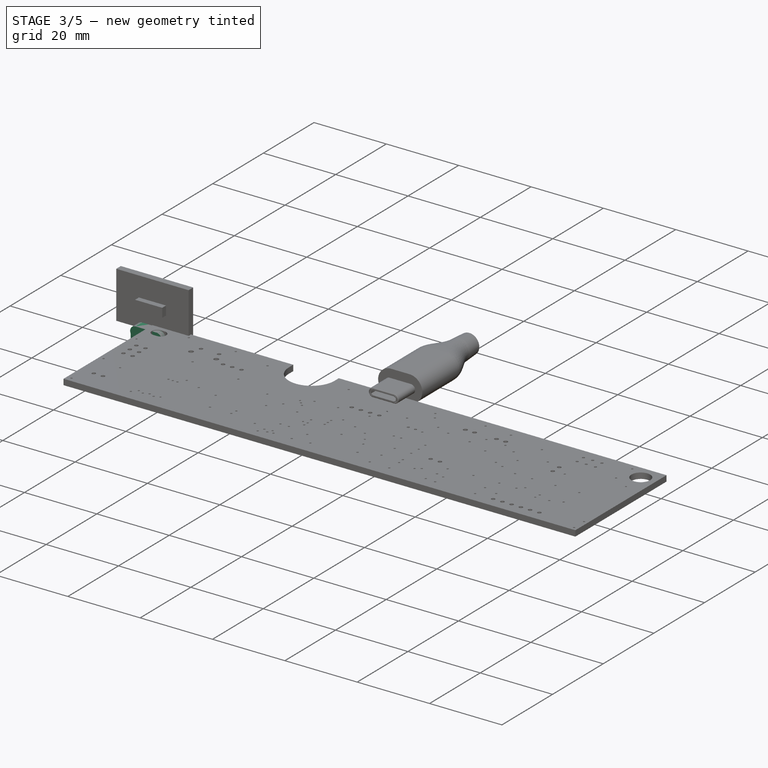
[diagram: stage 3 of 5 — iso view after this stage's code; geometry added in this stage tinted green]
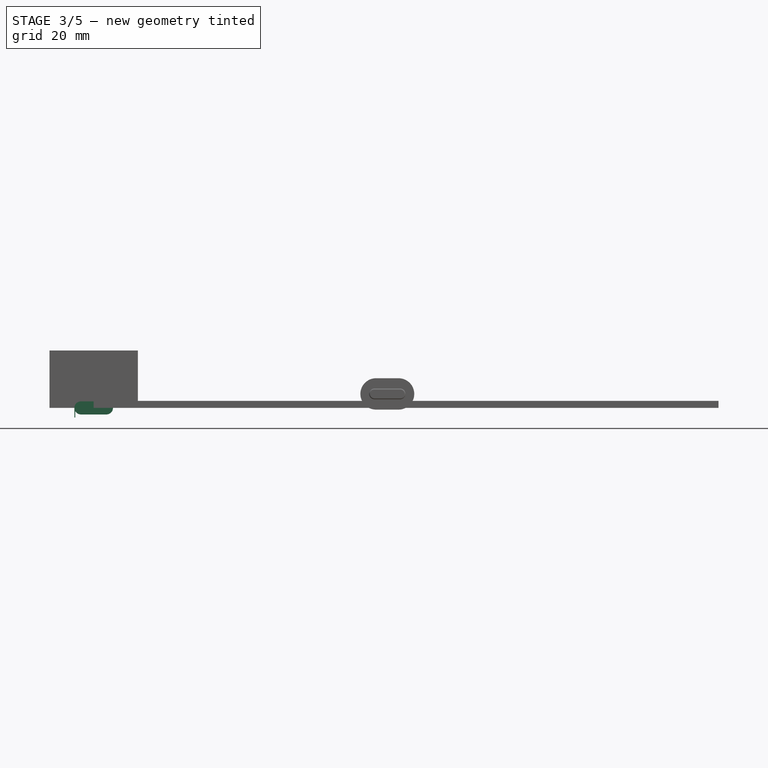
[diagram: stage 3 of 5 — front view after this stage's code; geometry added in this stage tinted green]
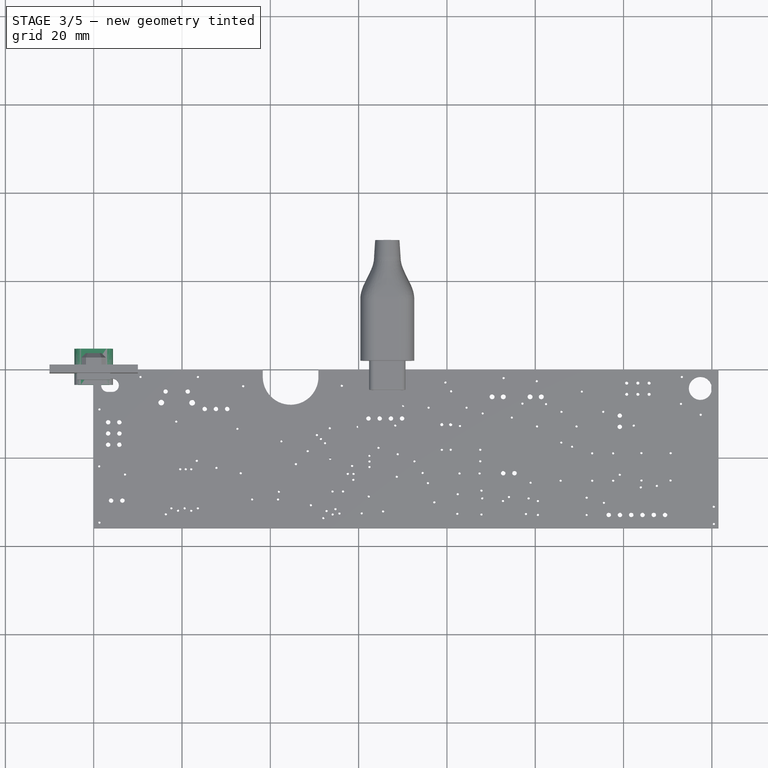
[diagram: stage 3 of 5 — top view after this stage's code; geometry added in this stage tinted green]
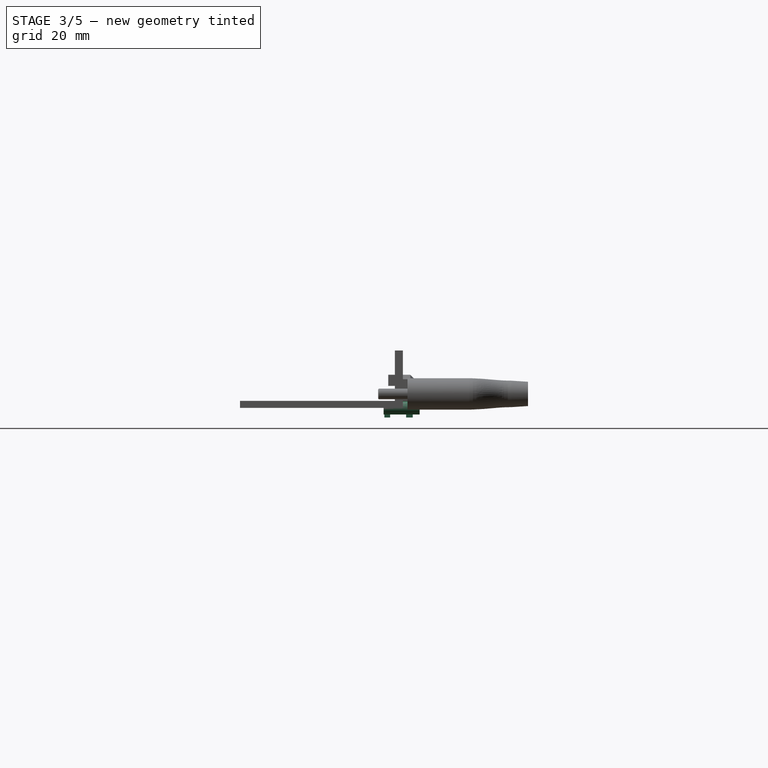
[diagram: stage 3 of 5 — right view after this stage's code; geometry added in this stage tinted green]
FEATURE [PartDesign::Body] Body002  label="usb-type-c-hhkb-Rev3"
  Group = -> [PCB_Border001,PCB_Holes001,Pad002,Pocket001]
  Origin = -> Origin002
  Tip = -> Pocket001
FEATURE [PartDesign::Mirrored] Mirrored001
  MirrorPlane = -> XY_Plane005
FEATURE [Sketcher::SketchObject] Sketch004  label="GNDplane"
  MapMode = 5
  Placement = pos=(0,0,0) rot=(0.57735,0.57735,0.57735;2.0944rad)
  Support = -> [YZ_Plane003]
  sketch-geometry (15):
    g0: LineSegment StartX=1.62 StartY=0.3 StartZ=0 EndX=1.37 EndY=0.6 EndZ=0
    g1: LineSegment StartX=1.37 StartY=0.6 StartZ=0 EndX=0.1 EndY=0.6 EndZ=0
    g2: ArcOfCircle CenterX=0.1 CenterY=0.7 CenterZ=0 NormalX=0 NormalY=0 NormalZ=1 AngleXU=0 Radius=0.1 StartAngle=3.14159 EndAngle=4.71239
    g3: LineSegment StartX=0 StartY=0.7 StartZ=0 EndX=0 EndY=1.18 EndZ=0
    g4: ArcOfCircle CenterX=-0.1 CenterY=1.18 CenterZ=0 NormalX=0 NormalY=0 NormalZ=1 AngleXU=0 Radius=0.1 StartAngle=0 EndAngle=1.5708
    g5: LineSegment StartX=-0.1 StartY=1.28 StartZ=0 EndX=-1.28448 EndY=1.28 EndZ=0
    g6: LineSegment StartX=-1.28448 StartY=1.28 StartZ=0 EndX=-1.28448 EndY=-1.28 EndZ=0
    g7: LineSegment StartX=-1.28448 StartY=-1.28 StartZ=0 EndX=-0.1 EndY=-1.28 EndZ=0
    g8: LineSegment [constr] StartX=-0.1 StartY=-1.28 StartZ=0 EndX=-0.1 EndY=1.28 EndZ=0
    g9: LineSegment StartX=1.62 StartY=-0.3 StartZ=0 EndX=1.37 EndY=-0.6 EndZ=0
    g10: LineSegment StartX=1.37 StartY=-0.6 StartZ=0 EndX=0.1 EndY=-0.6 EndZ=0
    g11: ArcOfCircle CenterX=0.1 CenterY=-0.7 CenterZ=0 NormalX=0 NormalY=0 NormalZ=1 AngleXU=0 Radius=0.1 StartAngle=1.5708 EndAngle=3.14159
    g12: LineSegment StartX=0 StartY=-0.7 StartZ=0 EndX=0 EndY=-1.18 EndZ=0
    g13: ArcOfCircle CenterX=-0.1 CenterY=-1.18 CenterZ=0 NormalX=0 NormalY=0 NormalZ=1 AngleXU=0 Radius=0.1 StartAngle=4.71239 EndAngle=6.28319
    g14: LineSegment StartX=1.62 StartY=0.3 StartZ=0 EndX=1.62 EndY=-0.3 EndZ=0
  constraints (38):
    c: Coincident(g0,g1)
    c: Horizontal(g1)
    c: Tangent(g1,g2) = 1.5708
    c: Tangent(g2,g3) = 1.5708
    c: Tangent(g3,g4) = -1.5708
    c: Vertical(g3)
    c: PointOnObject(g3,g-2)
    c: Coincident(g5,g6)
    c: Coincident(g6,g7)
    c: Coincident(g7,g8)
    c: Coincident(g8,g5)
    c: Horizontal(g5)
    c: Horizontal(g7)
    c: Vertical(g6)
    c: Vertical(g8)
    c: Coincident(g5,g4)
    c: Coincident(g9,g10)
    c: Horizontal(g10)
    c: Tangent(g10,g11) = -1.5708
    c: Tangent(g11,g12) = -1.5708
    c: Tangent(g12,g13) = 1.5708
    c: Vertical(g12)
    c: Symmetric(g10,g1,g-1)
    c: Symmetric(g0,g9,g-1)
    c: Symmetric(g9,g0,g-1)
    c: Coincident(g14,g0)
    c: Coincident(g14,g9)
    c: DistanceY(g14,g14) = 0.6
    c: DistanceY(g9,g0) = 1.2
    c: Tangent(g13,g7) = -1.5708
    c: Symmetric(g6,g5,g-1)
    c: Equal(g2,g11)
    c: Radius(g2) = 0.1
    c: DistanceX(g0) = 1.37
    c: DistanceX(g0) = 1.62
    c: Equal(g4,g13)
    c: Radius(g13) = 0.1
    c: DistanceY(g6,g6) = 2.56
FEATURE [Sketcher::SketchObject] Sketch002  label="Shell"
  MapMode = 5
  Placement = pos=(0,0,0) rot=(1,0,0;1.5708rad)
  Support = -> [XZ_Plane003]
  sketch-geometry (10):
    g0: ArcOfCircle CenterX=-2.89 CenterY=0 CenterZ=0 NormalX=0 NormalY=0 NormalZ=1 AngleXU=0 Radius=1.28 StartAngle=1.5708 EndAngle=4.71239
    g1: ArcOfCircle CenterX=2.89 CenterY=0 CenterZ=0 NormalX=0 NormalY=0 NormalZ=1 AngleXU=0 Radius=1.28 StartAngle=4.71239 EndAngle=7.85398
    g2: LineSegment StartX=-2.89 StartY=-1.28 StartZ=0 EndX=2.89 EndY=-1.28 EndZ=0
    g3: LineSegment StartX=-2.89 StartY=1.28 StartZ=0 EndX=2.89 EndY=1.28 EndZ=0
    g4: GeomPoint X=-4.17 Y=0 Z=0
    g5: GeomPoint X=4.17 Y=0 Z=0
    g6: ArcOfCircle CenterX=-2.89 CenterY=0 CenterZ=0 NormalX=0 NormalY=0 NormalZ=1 AngleXU=0 Radius=1.48 StartAngle=1.5708 EndAngle=4.71239
    g7: ArcOfCircle CenterX=2.89 CenterY=0 CenterZ=0 NormalX=0 NormalY=0 NormalZ=1 AngleXU=0 Radius=1.48 StartAngle=4.71239 EndAngle=7.85398
    g8: LineSegment StartX=-2.89 StartY=-1.48 StartZ=0 EndX=2.89 EndY=-1.48 EndZ=0
    g9: LineSegment StartX=-2.89 StartY=1.48 StartZ=0 EndX=2.89 EndY=1.48 EndZ=0
  constraints (23):
    c: Tangent(g0,g3) = 1.5708
    c: Tangent(g0,g2) = -1.5708
    c: Tangent(g2,g1) = -1.5708
    c: Tangent(g3,g1) = 1.5708
    c: Horizontal(g2)
    c: Equal(g0,g1)
    c: PointOnObject(g0,g-1)
    c: DistanceY(g0,g0) = 2.56  'InnerHeight'
    c: Symmetric(g0,g1,g-2)
    c: PointOnObject(g4,g0)
    c: PointOnObject(g5,g1)
    c: PointOnObject(g5,g-1)
    c: PointOnObject(g4,g-1)
    c: DistanceX(g4,g5) = 8.34  'InnerWidth'
    c: Tangent(g6,g9) = 1.5708
    c: Tangent(g6,g8) = -1.5708
    c: Tangent(g8,g7) = -1.5708
    c: Tangent(g9,g7) = 1.5708
    c: Horizontal(g8)
    c: Equal(g6,g7)
    c: Coincident(g6,g0)
    c: Coincident(g7,g1)
    c: DistanceY(g7,g1) = 0.2  'Thickness'
FEATURE [Sketcher::SketchObject] Sketch019  label="MountingPins"
  MapMode = 5
  Support = -> [XY_Plane004]
  expr: Constraints.OffetX = Shell.Constraints.InnerWidth / 2 + Shell.Constraints.Thickness / 2
  expr: Constraints.Thickness = Shell.Constraints.Thickness
  sketch-geometry (13):
    g0: LineSegment StartX=-4.37 StartY=3.15 StartZ=0 EndX=-4.17 EndY=3.15 EndZ=0
    g1: LineSegment StartX=-4.17 StartY=3.15 StartZ=0 EndX=-4.17 EndY=1.65 EndZ=0
    g2: LineSegment StartX=-4.17 StartY=1.65 StartZ=0 EndX=-4.37 EndY=1.65 EndZ=0
    g3: LineSegment StartX=-4.37 StartY=1.65 StartZ=0 EndX=-4.37 EndY=3.15 EndZ=0
    g4: LineSegment StartX=-4.37 StartY=-2 StartZ=0 EndX=-4.17 EndY=-2 EndZ=0
    g5: LineSegment StartX=-4.17 StartY=-2 StartZ=0 EndX=-4.17 EndY=-3.3 EndZ=0
    g6: LineSegment StartX=-4.17 StartY=-3.3 StartZ=0 EndX=-4.37 EndY=-3.3 EndZ=0
    g7: LineSegment StartX=-4.37 StartY=-3.3 StartZ=0 EndX=-4.37 EndY=-2 EndZ=0
    g8: LineSegment [constr] StartX=-4.37 StartY=1.65 StartZ=0 EndX=-4.37 EndY=-2 EndZ=0
    g9: LineSegment [constr] StartX=-4.17 StartY=-2 StartZ=0 EndX=-4.17 EndY=1.65 EndZ=0
    g10: GeomPoint X=-4.37 Y=2.4 Z=0
    g11: GeomPoint X=-4.37 Y=-2.65 Z=0
    g12: GeomPoint X=-4.27 Y=3.15 Z=0
  constraints (31):
    c: Coincident(g0,g1)
    c: Coincident(g1,g2)
    c: Coincident(g2,g3)
    c: Coincident(g3,g0)
    c: Horizontal(g0)
    c: Horizontal(g2)
    c: Vertical(g1)
    c: Vertical(g3)
    c: Coincident(g4,g5)
    c: Coincident(g5,g6)
    c: Coincident(g6,g7)
    c: Coincident(g7,g4)
    c: Horizontal(g4)
    c: Horizontal(g6)
    c: Vertical(g5)
    c: Vertical(g7)
    c: Coincident(g8,g2)
    c: Coincident(g8,g4)
    c: Vertical(g8)
    c: Coincident(g9,g4)
    c: Coincident(g9,g1)
    c: Vertical(g9)
    c: DistanceX(g0,g0) = 0.2  'Thickness'
    c: DistanceY(g3,g3) = 1.5  'FrontY'
    c: DistanceY(g7,g7) = 1.3  'RearY'
    c: Symmetric(g4,g6,g11)
    c: Symmetric(g2,g0,g10)
    c: DistanceY(g10) = 2.4  'FrontCenterY'
    c: DistanceY(g11) = -2.65  'RearCenterY'
    c: Symmetric(g0,g0,g12)
    c: DistanceX(g12,g-1) = 4.27  'OffetX'
FEATURE [Sketcher::SketchObject] Sketch001  label="Center"
  MapMode = 5
  Support = -> [XY_Plane005]
  sketch-geometry (20):
    g0: LineSegment [constr] StartX=-3.445 StartY=1.7 StartZ=0 EndX=3.445 EndY=1.7 EndZ=0
    g1: LineSegment StartX=3.445 StartY=1.7 StartZ=0 EndX=3.445 EndY=0 EndZ=0
    g2: LineSegment StartX=3.445 StartY=0 StartZ=0 EndX=-3.445 EndY=0 EndZ=0
    g3: LineSegment StartX=-3.445 StartY=0 StartZ=0 EndX=-3.445 EndY=1.7 EndZ=0
    g4: LineSegment StartX=-3.195 StartY=4.45 StartZ=0 EndX=-3.445 EndY=3.7 EndZ=0
    g5: LineSegment StartX=-3.445 StartY=3.7 StartZ=0 EndX=-3.445 EndY=3.2 EndZ=0
    g6: ArcOfCircle CenterX=-3.445 CenterY=2.9 CenterZ=0 NormalX=0 NormalY=0 NormalZ=1 AngleXU=0 Radius=0.3 StartAngle=5.8281e-08 EndAngle=1.5708
    g7: ArcOfCircle CenterX=-3.445 CenterY=2 CenterZ=0 NormalX=0 NormalY=0 NormalZ=1 AngleXU=0 Radius=0.3 StartAngle=4.71239 EndAngle=6.28319
    g8: LineSegment [constr] StartX=-3.145 StartY=2.9 StartZ=0 EndX=3.145 EndY=2.9 EndZ=0
    g9: LineSegment StartX=3.145 StartY=2.9 StartZ=0 EndX=3.145 EndY=2 EndZ=0
    g10: LineSegment [constr] StartX=3.145 StartY=2 StartZ=0 EndX=-3.145 EndY=2 EndZ=0
    g11: LineSegment StartX=-3.145 StartY=2 StartZ=0 EndX=-3.145 EndY=2.9 EndZ=0
    g12: LineSegment [constr] StartX=-3.445 StartY=3.2 StartZ=0 EndX=-3.445 EndY=1.7 EndZ=0
    g13: LineSegment StartX=-3.195 StartY=4.45 StartZ=0 EndX=3.195 EndY=4.45 EndZ=0
    g14: LineSegment StartX=3.195 StartY=4.45 StartZ=0 EndX=3.445 EndY=3.7 EndZ=0
    g15: LineSegment StartX=3.445 StartY=3.7 StartZ=0 EndX=3.445 EndY=3.2 EndZ=0
    g16: ArcOfCircle CenterX=3.445 CenterY=2.9 CenterZ=0 NormalX=0 NormalY=0 NormalZ=1 AngleXU=0 Radius=0.3 StartAngle=1.5708 EndAngle=3.14159
    g17: ArcOfCircle CenterX=3.445 CenterY=2 CenterZ=0 NormalX=0 NormalY=0 NormalZ=1 AngleXU=0 Radius=0.3 StartAngle=3.14159 EndAngle=4.71239
    g18: LineSegment [constr] StartX=3.445 StartY=1.7 StartZ=0 EndX=3.445 EndY=3.2 EndZ=0
    g19: LineSegment [constr] StartX=-3.445 StartY=3.7 StartZ=0 EndX=3.445 EndY=3.7 EndZ=0
  constraints (55):
    c: Coincident(g0,g1)
    c: Coincident(g1,g2)
    c: Coincident(g2,g3)
    c: Coincident(g3,g0)
    c: Horizontal(g0)
    c: Horizontal(g2)
    c: Vertical(g1)
    c: Vertical(g3)
    c: PointOnObject(g1,g-1)
    c: Symmetric(g2,g1,g-2)
    c: DistanceX(g2,g2) = 6.89
    c: Coincident(g4,g5)
    c: Vertical(g5)
    c: Perpendicular(g5,g6) = 4.71239
    c: Coincident(g0,g7)
    c: Coincident(g8,g9)
    c: Coincident(g9,g10)
    c: Coincident(g10,g11)
    c: Coincident(g11,g8)
    c: Horizontal(g8)
    c: Horizontal(g10)
    c: Vertical(g9)
    c: Vertical(g11)
    c: Coincident(g8,g6)
    c: Coincident(g10,g7)
    c: Coincident(g12,g5)
    c: Coincident(g12,g0)
    c: Vertical(g12)
    c: Coincident(g4,g13)
    c: Horizontal(g13)
    c: Coincident(g13,g14)
    c: Coincident(g14,g15)
    c: Vertical(g15)
    c: Perpendicular(g15,g16) = 4.71239
    c: Coincident(g16,g8)
    c: Coincident(g17,g0)
    c: Coincident(g18,g0)
    c: Coincident(g18,g15)
    c: Vertical(g18)
    c: Symmetric(g4,g13,g-2)
    c: Coincident(g19,g4)
    c: Coincident(g19,g14)
    c: Horizontal(g19)
    c: DistanceX(g4,g4) = 0.25
    c: DistanceY(g1,g13) = 4.45
    c: Tangent(g6,g11)
    c: Tangent(g9,g16)
    c: Tangent(g11,g7)
    c: Tangent(g17,g9) = -1.5708
    c: Perpendicular(g17,g1)
    c: Perpendicular(g7,g3)
    c: Radius(g17) = 0.3
    c: DistanceY(g1,g1) = 1.7
    c: DistanceY(g1,g15) = 3.2
    c: DistanceY(g4,g4) = 0.75
FEATURE [Sketcher::SketchObject] Sketch014  label="Rear"
  MapMode = 5
  Placement = pos=(0,0,0) rot=(1,0,0;1.5708rad)
  Support = -> [XZ_Plane003]
  expr: Constraints[22] = Sketch002.Constraints.Thickness
  expr: Constraints[13] = Sketch002.Constraints.InnerWidth
  expr: Constraints[7] = Sketch002.Constraints.InnerHeight
  sketch-geometry (10):
    g0: ArcOfCircle [constr] CenterX=-2.89 CenterY=0 CenterZ=0 NormalX=0 NormalY=0 NormalZ=1 AngleXU=0 Radius=1.28 StartAngle=1.5708 EndAngle=4.71239
    g1: ArcOfCircle [constr] CenterX=2.89 CenterY=0 CenterZ=0 NormalX=0 NormalY=0 NormalZ=1 AngleXU=0 Radius=1.28 StartAngle=4.71239 EndAngle=7.85398
    g2: LineSegment [constr] StartX=-2.89 StartY=-1.28 StartZ=0 EndX=2.89 EndY=-1.28 EndZ=0
    g3: LineSegment [constr] StartX=-2.89 StartY=1.28 StartZ=0 EndX=2.89 EndY=1.28 EndZ=0
    g4: GeomPoint X=-4.17 Y=0 Z=0
    g5: GeomPoint X=4.17 Y=0 Z=0
    g6: ArcOfCircle CenterX=-2.89 CenterY=0 CenterZ=0 NormalX=0 NormalY=0 NormalZ=1 AngleXU=0 Radius=1.48 StartAngle=1.5708 EndAngle=4.71239
    g7: ArcOfCircle CenterX=2.89 CenterY=0 CenterZ=0 NormalX=0 NormalY=0 NormalZ=1 AngleXU=0 Radius=1.48 StartAngle=4.71239 EndAngle=7.85398
    g8: LineSegment StartX=-2.89 StartY=-1.48 StartZ=0 EndX=2.89 EndY=-1.48 EndZ=0
    g9: LineSegment StartX=-2.89 StartY=1.48 StartZ=0 EndX=2.89 EndY=1.48 EndZ=0
  constraints (23):
    c: Tangent(g0,g3) = 1.5708
    c: Tangent(g0,g2) = -1.5708
    c: Tangent(g2,g1) = -1.5708
    c: Tangent(g3,g1) = 1.5708
    c: Horizontal(g2)
    c: Equal(g0,g1)
    c: PointOnObject(g0,g-1)
    c: DistanceY(g0,g0) = 2.56
    c: Symmetric(g0,g1,g-2)
    c: PointOnObject(g4,g0)
    c: PointOnObject(g5,g1)
    c: PointOnObject(g5,g-1)
    c: PointOnObject(g4,g-1)
    c: DistanceX(g4,g5) = 8.34
    c: Tangent(g6,g9) = 1.5708
    c: Tangent(g6,g8) = -1.5708
    c: Tangent(g8,g7) = -1.5708
    c: Tangent(g9,g7) = 1.5708
    c: Horizontal(g8)
    c: Equal(g6,g7)
    c: Coincident(g6,g0)
    c: Coincident(g7,g1)
    c: DistanceY(g7,g1) = 0.2
FEATURE [PartDesign::Pad] Pad003  label="PadShell"
  Length = 4.7
  Length2 = 100
  Placement = pos=(0,0,0) rot=(1,0,0;1.5708rad)
  Profile = -> Sketch002
  Reversed = true
  Type = 0
FEATURE [PartDesign::Chamfer] Chamfer001  label="ChamferShell"
  Base = -> Pad003 [Edge16]
  BaseFeature = -> Pad003
  Placement = pos=(0,0,0) rot=(1,0,0;1.5708rad)
  Size = 0.1
FEATURE [PartDesign::Pad] Pad004  label="PadCenter"
  Length = 0.6
  Length2 = 100
  Midplane = true
  Profile = -> Sketch001
  Type = 0
FEATURE [Sketcher::SketchObject] Sketch003  label="Pins"
  MapMode = 5
  Placement = pos=(0,0,0.3) rot=(0,0,1;0rad)
  Support = -> [Pad004]
  sketch-geometry (30):
    g0: LineSegment StartX=-2.875 StartY=4 StartZ=0 EndX=-2.625 EndY=4 EndZ=0
    g1: LineSegment StartX=-2.625 StartY=4 StartZ=0 EndX=-2.625 EndY=1.6 EndZ=0
    g2: LineSegment StartX=-2.625 StartY=1.6 StartZ=0 EndX=-2.875 EndY=1.6 EndZ=0
    g3: LineSegment StartX=-2.875 StartY=1.6 StartZ=0 EndX=-2.875 EndY=4 EndZ=0
    g4: LineSegment StartX=-1.375 StartY=4 StartZ=0 EndX=-1.125 EndY=4 EndZ=0
    g5: LineSegment StartX=-1.125 StartY=4 StartZ=0 EndX=-1.125 EndY=1.6 EndZ=0
    g6: LineSegment StartX=-1.125 StartY=1.6 StartZ=0 EndX=-1.375 EndY=1.6 EndZ=0
    g7: LineSegment StartX=-1.375 StartY=1.6 StartZ=0 EndX=-1.375 EndY=4 EndZ=0
    g8: LineSegment StartX=-2.375 StartY=3.5 StartZ=0 EndX=-2.125 EndY=3.5 EndZ=0
    g9: LineSegment StartX=-2.125 StartY=3.5 StartZ=0 EndX=-2.125 EndY=1.6 EndZ=0
    g10: LineSegment StartX=-2.125 StartY=1.6 StartZ=0 EndX=-2.375 EndY=1.6 EndZ=0
    g11: LineSegment StartX=-2.375 StartY=1.6 StartZ=0 EndX=-2.375 EndY=3.5 EndZ=0
    g12: LineSegment StartX=-1.875 StartY=3.5 StartZ=0 EndX=-1.625 EndY=3.5 EndZ=0
    g13: LineSegment StartX=-1.625 StartY=3.5 StartZ=0 EndX=-1.625 EndY=1.6 EndZ=0
    g14: LineSegment StartX=-1.625 StartY=1.6 StartZ=0 EndX=-1.875 EndY=1.6 EndZ=0
    g15: LineSegment StartX=-1.875 StartY=1.6 StartZ=0 EndX=-1.875 EndY=3.5 EndZ=0
    g16: LineSegment StartX=-0.875 StartY=3.5 StartZ=0 EndX=-0.625 EndY=3.5 EndZ=0
    g17: LineSegment StartX=-0.625 StartY=3.5 StartZ=0 EndX=-0.625 EndY=1.6 EndZ=0
    g18: LineSegment StartX=-0.625 StartY=1.6 StartZ=0 EndX=-0.875 EndY=1.6 EndZ=0
    g19: LineSegment StartX=-0.875 StartY=1.6 StartZ=0 EndX=-0.875 EndY=3.5 EndZ=0
    g20: LineSegment StartX=-0.375 StartY=3.5 StartZ=0 EndX=-0.125 EndY=3.5 EndZ=0
    g21: LineSegment StartX=-0.125 StartY=3.5 StartZ=0 EndX=-0.125 EndY=1.6 EndZ=0
    g22: LineSegment StartX=-0.125 StartY=1.6 StartZ=0 EndX=-0.375 EndY=1.6 EndZ=0
    g23: LineSegment StartX=-0.375 StartY=1.6 StartZ=0 EndX=-0.375 EndY=3.5 EndZ=0
    g24: LineSegment [constr] StartX=-2.625 StartY=1.6 StartZ=0 EndX=-2.375 EndY=1.6 EndZ=0
    g25: LineSegment [constr] StartX=-2.125 StartY=1.6 StartZ=0 EndX=-1.875 EndY=1.6 EndZ=0
    g26: LineSegment [constr] StartX=-1.625 StartY=1.6 StartZ=0 EndX=-1.375 EndY=1.6 EndZ=0
    g27: LineSegment [constr] StartX=-1.125 StartY=1.6 StartZ=0 EndX=-0.875 EndY=1.6 EndZ=0
    g28: LineSegment [constr] StartX=-0.625 StartY=1.6 StartZ=0 EndX=-0.375 EndY=1.6 EndZ=0
    g29: GeomPoint X=-0.25 Y=1.6 Z=0
  constraints (83):
    c: Coincident(g0,g1)
    c: Coincident(g1,g2)
    c: Coincident(g2,g3)
    c: Coincident(g3,g0)
    c: Horizontal(g0)
    c: Horizontal(g2)
    c: Vertical(g1)
    c: Vertical(g3)
    c: Coincident(g4,g5)
    c: Coincident(g5,g6)
    c: Coincident(g6,g7)
    c: Coincident(g7,g4)
    c: Horizontal(g4)
    c: Horizontal(g6)
    c: Vertical(g5)
    c: Vertical(g7)
    c: Coincident(g8,g9)
    c: Coincident(g9,g10)
    c: Coincident(g10,g11)
    c: Coincident(g11,g8)
    c: Horizontal(g8)
    c: Horizontal(g10)
    c: Vertical(g9)
    c: Vertical(g11)
    c: Coincident(g12,g13)
    c: Coincident(g13,g14)
    c: Coincident(g14,g15)
    c: Coincident(g15,g12)
    c: Horizontal(g12)
    c: Horizontal(g14)
    c: Vertical(g13)
    c: Vertical(g15)
    c: Coincident(g16,g17)
    c: Coincident(g17,g18)
    c: Coincident(g18,g19)
    c: Coincident(g19,g16)
    c: Horizontal(g16)
    c: Horizontal(g18)
    c: Vertical(g17)
    c: Vertical(g19)
    c: Coincident(g20,g21)
    c: Coincident(g21,g22)
    c: Coincident(g22,g23)
    c: Coincident(g23,g20)
    c: Horizontal(g20)
    c: Horizontal(g22)
    c: Vertical(g21)
    c: Vertical(g23)
    c: Equal(g2,g10)
    c: Equal(g10,g14)
    c: Equal(g14,g6)
    c: Equal(g6,g18)
    c: Equal(g18,g22)
    c: DistanceX(g22,g22) = 0.25
    c: Coincident(g24,g1)
    c: Coincident(g24,g10)
    c: Horizontal(g24)
    c: Coincident(g25,g9)
    c: Coincident(g25,g14)
    c: Horizontal(g25)
    c: Coincident(g26,g13)
    c: Coincident(g26,g6)
    c: Horizontal(g26)
    c: Coincident(g27,g5)
    c: Coincident(g18,g27)
    c: Horizontal(g27)
    c: Coincident(g28,g17)
    c: Coincident(g28,g22)
    c: Horizontal(g28)
    c: Equal(g24,g25)
    c: Equal(g25,g26)
    c: Equal(g26,g27)
    c: Equal(g27,g28)
    c: Horizontal(g8,g12)
    c: Horizontal(g12,g16)
    c: Horizontal(g16,g20)
    c: Horizontal(g0,g4)
    c: DistanceX(g2,g10) = 0.5
    c: DistanceY(g20) = 3.5
    c: DistanceY(g4) = 4
    c: DistanceY(g21) = 1.6
    c: Symmetric(g22,g21,g29)
    c: DistanceX(g29,g-1) = 0.25
FEATURE [PartDesign::Mirrored] Mirrored
  MirrorPlane = -> Sketch003 [V_Axis]
FEATURE [PartDesign::Pad] Pad010  label="PadRear"
  BaseFeature = -> Chamfer001
  Length = 3.47
  Length2 = 100
  Placement = pos=(0,0,0) rot=(1,0,0;1.5708rad)
  Profile = -> Sketch014
  Refine = true
  Type = 0
FEATURE [PartDesign::Pad] Pad011  label="PadPins"
  BaseFeature = -> Pad004
  Length = 0.05
  Length2 = 100
  Profile = -> Sketch003
  Type = 0
FEATURE [PartDesign::MultiTransform] MultiTransform  label="MultiTransformPads"
  BaseFeature = -> Pad011
  Originals = -> [Pad011]
  Transformations = -> [Mirrored,Mirrored001]
FEATURE [PartDesign::Chamfer] Chamfer  label="ChamferFront"
  Base = -> MultiTransform [Edge3,Edge4]
  BaseFeature = -> MultiTransform
  Size = 0.15
FEATURE [PartDesign::Fillet] Fillet
  Base = -> Chamfer [Edge76,Edge17,Edge83,Edge24,Edge86,Edge27,Edge78,Edge19]
  BaseFeature = -> Chamfer
  Radius = 0.15
FEATURE [PartDesign::Body] Body003  label="BodyMidPlate"
  Group = -> [Sketch001,Pad004,Sketch003,Pad011,MultiTransform,Mirrored,Mirrored001,Chamfer,Sketch004,Fillet]
  Origin = -> Origin004
  Tip = -> Fillet
FEATURE [PartDesign::Pad] Pad012  label="PadMountingPins"
  BaseFeature = -> Pad010
  Length = 2.17
  Length2 = 100
  Placement = pos=(0,0,0) rot=(1,0,0;1.5708rad)
  Profile = -> Sketch019
  Reversed = true
  Type = 0
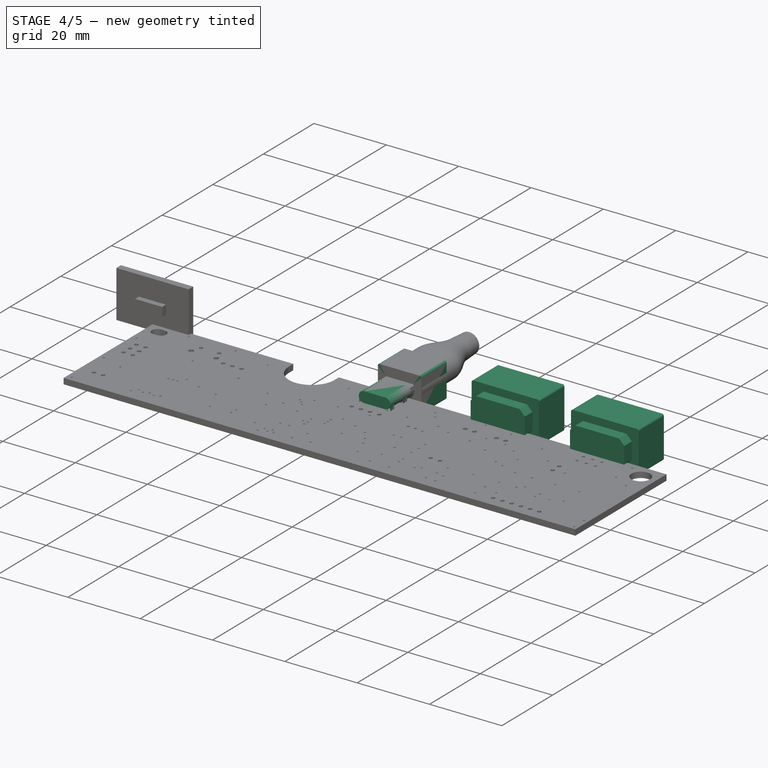
[diagram: stage 4 of 5 — iso view after this stage's code; geometry added in this stage tinted green]
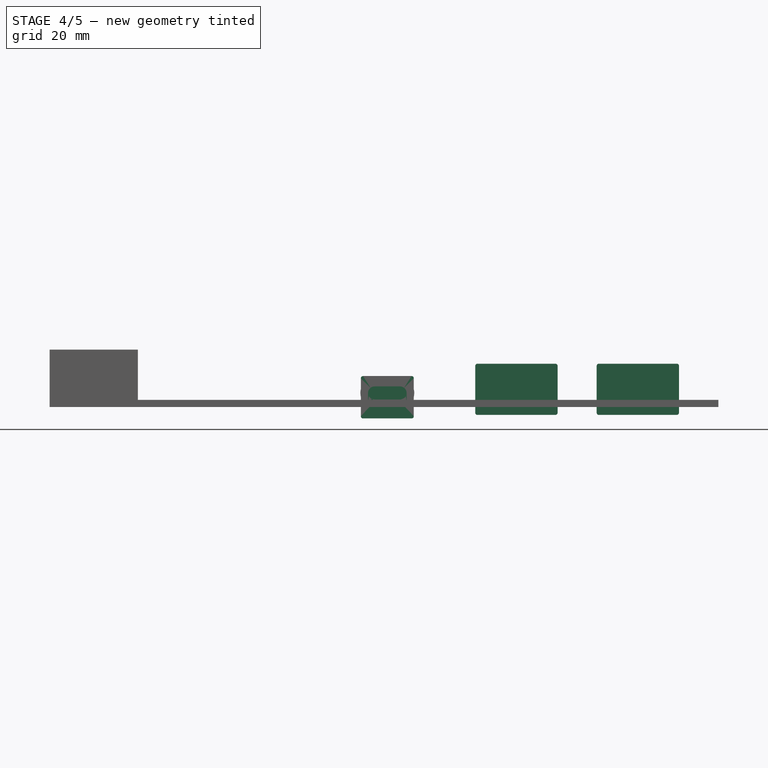
[diagram: stage 4 of 5 — front view after this stage's code; geometry added in this stage tinted green]
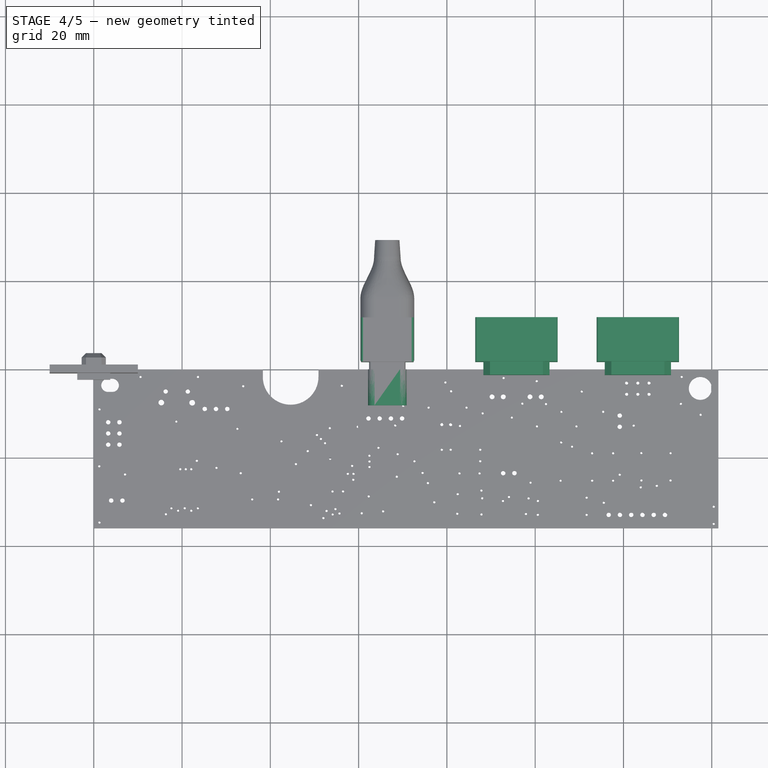
[diagram: stage 4 of 5 — top view after this stage's code; geometry added in this stage tinted green]
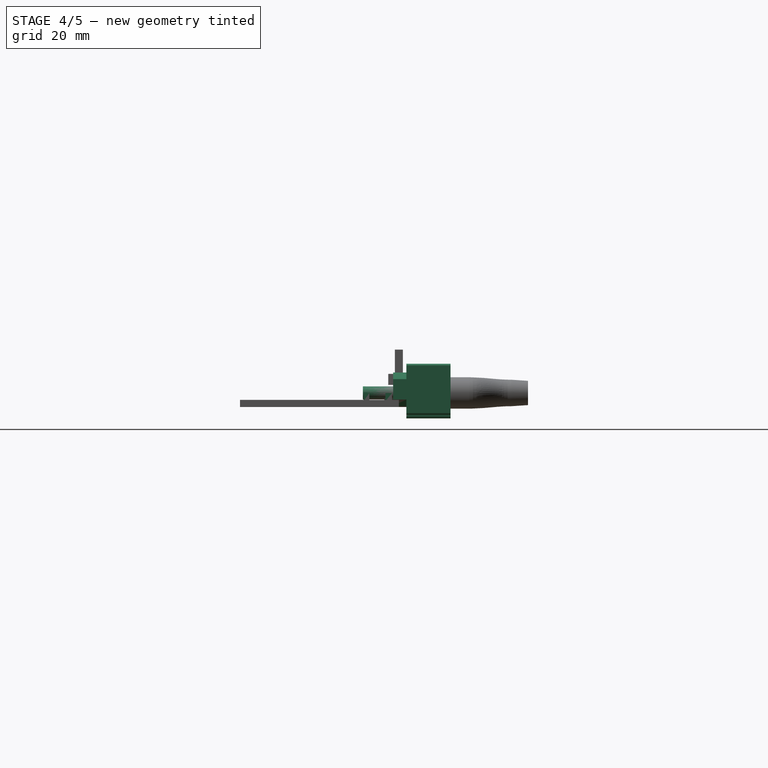
[diagram: stage 4 of 5 — right view after this stage's code; geometry added in this stage tinted green]
FEATURE [PartDesign::Mirrored] Mirrored002  label="MirroredMountingPins"
  BaseFeature = -> Pad012
  MirrorPlane = -> Sketch019 [V_Axis]
  Originals = -> [Pad012]
  Placement = pos=(0,0,0) rot=(1,0,0;1.5708rad)
  Refine = true
FEATURE [PartDesign::Chamfer] Chamfer002  label="ChamferMountingPins"
  Base = -> Mirrored002 [Edge68,Edge72,Edge76,Edge80,Edge58,Edge55,Edge66,Edge63]
  BaseFeature = -> Mirrored002
  Placement = pos=(0,0,0) rot=(1,0,0;1.5708rad)
  Size = 0.3
FEATURE [Sketcher::SketchObject] Sketch023  label="PortOpening"
  MapMode = 5
  Placement = pos=(0,0,0) rot=(1,0,0;1.5708rad)
  Support = -> [XZ_Plane007]
  sketch-geometry (12):
    g0: LineSegment [constr] StartX=-7.5 StartY=2.3 StartZ=0 EndX=7.5 EndY=2.3 EndZ=0
    g1: LineSegment StartX=7.5 StartY=2.3 StartZ=0 EndX=7.5 EndY=-2.3 EndZ=0
    g2: LineSegment [constr] StartX=7.5 StartY=-2.3 StartZ=0 EndX=-7.5 EndY=-2.3 EndZ=0
    g3: LineSegment StartX=-7.5 StartY=-2.3 StartZ=0 EndX=-7.5 EndY=2.3 EndZ=0
    g4: LineSegment StartX=-6 StartY=3.8 StartZ=0 EndX=6 EndY=3.8 EndZ=0
    g5: LineSegment [constr] StartX=6 StartY=3.8 StartZ=0 EndX=6 EndY=-3.8 EndZ=0
    g6: LineSegment StartX=6 StartY=-3.8 StartZ=0 EndX=-6 EndY=-3.8 EndZ=0
    g7: LineSegment [constr] StartX=-6 StartY=-3.8 StartZ=0 EndX=-6 EndY=3.8 EndZ=0
    g8: LineSegment StartX=-7.5 StartY=2.3 StartZ=0 EndX=-6 EndY=3.8 EndZ=0
    g9: LineSegment StartX=6 StartY=3.8 StartZ=0 EndX=7.5 EndY=2.3 EndZ=0
    g10: LineSegment StartX=-7.5 StartY=-2.3 StartZ=0 EndX=-6 EndY=-3.8 EndZ=0
    g11: LineSegment StartX=6 StartY=-3.8 StartZ=0 EndX=7.5 EndY=-2.3 EndZ=0
  constraints (32):
    c: Coincident(g0,g1)
    c: Coincident(g1,g2)
    c: Coincident(g2,g3)
    c: Coincident(g3,g0)
    c: Horizontal(g0)
    c: Horizontal(g2)
    c: Vertical(g1)
    c: Vertical(g3)
    c: Coincident(g4,g5)
    c: Coincident(g5,g6)
    c: Coincident(g6,g7)
    c: Coincident(g7,g4)
    c: Horizontal(g4)
    c: Horizontal(g6)
    c: Vertical(g5)
    c: Vertical(g7)
    c: Symmetric(g4,g4,g-2)
    c: Symmetric(g0,g0,g-2)
    c: Coincident(g8,g0)
    c: Coincident(g8,g4)
    c: Coincident(g9,g4)
    c: Coincident(g9,g0)
    c: Coincident(g10,g2)
    c: Coincident(g10,g6)
    c: Coincident(g11,g5)
    c: Coincident(g11,g1)
    c: Angle(g3,g8) = 2.35619
    c: DistanceX(g0,g0) = 15  'X'
    c: DistanceY(g6,g4) = 7.6  'Z'
    c: DistanceX(g5,g1) = 1.5  'Corner'
    c: Symmetric(g2,g0,g-1)
    c: Symmetric(g6,g4,g-1)
FEATURE [PartDesign::Pad] Pad015  label="PadPortOpening"
  Length = 3
  Length2 = 100
  Placement = pos=(0,0,0) rot=(1,0,0;1.5708rad)
  Profile = -> Sketch023
  Type = 0
FEATURE [Sketcher::SketchObject] Sketch024  label="PortPocket"
  MapMode = 5
  Placement = pos=(0,0,0) rot=(1,0,0;1.5708rad)
  Support = -> [XZ_Plane007]
  sketch-geometry (8):
    g0: LineSegment StartX=-8.825 StartY=5.8 StartZ=0 EndX=8.825 EndY=5.8 EndZ=0
    g1: LineSegment StartX=9.325 StartY=5.3 StartZ=0 EndX=9.325 EndY=-5.3 EndZ=0
    g2: LineSegment StartX=8.825 StartY=-5.8 StartZ=0 EndX=-8.825 EndY=-5.8 EndZ=0
    g3: LineSegment StartX=-9.325 StartY=-5.3 StartZ=0 EndX=-9.325 EndY=5.3 EndZ=0
    g4: ArcOfCircle CenterX=-8.825 CenterY=5.3 CenterZ=0 NormalX=0 NormalY=0 NormalZ=1 AngleXU=0 Radius=0.5 StartAngle=1.5708 EndAngle=3.14159
    g5: ArcOfCircle CenterX=8.825 CenterY=5.3 CenterZ=0 NormalX=0 NormalY=0 NormalZ=1 AngleXU=0 Radius=0.5 StartAngle=0 EndAngle=1.5708
    g6: ArcOfCircle CenterX=-8.825 CenterY=-5.3 CenterZ=0 NormalX=0 NormalY=0 NormalZ=1 AngleXU=0 Radius=0.5 StartAngle=3.14159 EndAngle=4.71239
    g7: ArcOfCircle CenterX=8.825 CenterY=-5.3 CenterZ=0 NormalX=0 NormalY=0 NormalZ=1 AngleXU=0 Radius=0.5 StartAngle=4.71239 EndAngle=6.28319
  constraints (20):
    c: Horizontal(g0)
    c: Horizontal(g2)
    c: Vertical(g1)
    c: Vertical(g3)
    c: Tangent(g0,g4) = 1.5708
    c: Tangent(g3,g4) = 1.5708
    c: Tangent(g0,g5) = 1.5708
    c: Tangent(g1,g5) = 1.5708
    c: Tangent(g2,g6) = 1.5708
    c: Tangent(g3,g6) = 1.5708
    c: Tangent(g1,g7) = 1.5708
    c: Tangent(g2,g7) = 1.5708
    c: Equal(g4,g5)
    c: Equal(g5,g6)
    c: Equal(g6,g7)
    c: Radius(g7) = 0.5  'CornerRadius'
    c: DistanceX(g3,g1) = 18.65  'X'
    c: Symmetric(g0,g0,g-2)
    c: Symmetric(g3,g3,g-1)
    c: DistanceY(g2,g0) = 11.6  'Z'
FEATURE [PartDesign::Pad] Pad016  label="PadPortPocket"
  BaseFeature = -> Pad015
  Length = 10
  Length2 = 100
  Placement = pos=(0,0,0) rot=(1,0,0;1.5708rad)
  Profile = -> Sketch024
  Reversed = true
  Type = 0
FEATURE [PartDesign::Body] Body006  label="BodyHubPortCut"
  Group = -> [Sketch023,Pad015,Sketch024,Pad016]
  Origin = -> Origin007
  Tip = -> Pad016
FEATURE [Part::FeaturePython] Placment  label="Port1"  # WARN: FeaturePython — macro-defined, semantics opaque (R4)
  ExposePlacement = true
  FlipZ = false
  Invert = false
  MarkerShape = 1
  MarkerSize = 0
  NumElements = 1
  Placement = pos=(95.75,0,4) rot=(0,0,1;0rad)
  PlacementChoice = 0
  isLattice = 1
FEATURE [Part::FeaturePython] Placment001  label="Port2"  # WARN: FeaturePython — macro-defined, semantics opaque (R4)
  ExposePlacement = true
  FlipZ = false
  Invert = false
  MarkerShape = 1
  MarkerSize = 0
  NumElements = 1
  Placement = pos=(123.25,0,4) rot=(0,0,1;0rad)
  PlacementChoice = 0
  isLattice = 1
FEATURE [Part::FeaturePython] Join  # WARN: FeaturePython — macro-defined, semantics opaque (R4)
  ExposePlacement = false
  Interleave = false
  Links = -> [Placment,Placment001]
  MarkerShape = 1
  MarkerSize = 0
  NumElements = 2
  Placement = pos=(0,1.7,0) rot=(0,0,1;0rad)
  isLattice = 1
FEATURE [Part::FeaturePython] Populate  label="Populate Join with BodyHubPortCut"  # WARN: FeaturePython — macro-defined, semantics opaque (R4)
  Copying = 0
  ExposePlacement = false
  MarkerShape = 1
  MarkerSize = 0
  NumElements = 0
  Object = -> Body006
  OutputCompounding = 1
  PlacementsTo = -> Join
  Referencing = 0
  isLattice = 0
FEATURE [Sketcher::SketchObject] Sketch025  label="MiniB"
  MapMode = 5
  Placement = pos=(0,0,0) rot=(1,0,0;1.5708rad)
  Support = -> [XZ_Plane008]
  sketch-geometry (16):
    g0: LineSegment StartX=-3.55 StartY=4.4 StartZ=0 EndX=3.55 EndY=4.4 EndZ=0
    g1: ArcOfCircle CenterX=3.55 CenterY=3.9 CenterZ=0 NormalX=0 NormalY=0 NormalZ=1 AngleXU=0 Radius=0.5 StartAngle=0 EndAngle=1.5708
    g2: LineSegment StartX=4.05 StartY=3.9 StartZ=0 EndX=4.05 EndY=2.6 EndZ=0
    g3: ArcOfCircle CenterX=3.55 CenterY=2.6 CenterZ=0 NormalX=0 NormalY=0 NormalZ=1 AngleXU=0 Radius=0.5 StartAngle=5.87286 EndAngle=6.28319
    g4: LineSegment StartX=4.0085 StartY=2.40055 StartZ=0 EndX=3.6165 EndY=1.49945 EndZ=0
    g5: ArcOfCircle CenterX=4.075 CenterY=1.3 CenterZ=0 NormalX=0 NormalY=0 NormalZ=1 AngleXU=0 Radius=0.5 StartAngle=2.73127 EndAngle=3.14159
    g6: LineSegment StartX=3.575 StartY=1.3 StartZ=0 EndX=3.575 EndY=0.5 EndZ=0
    g7: ArcOfCircle CenterX=3.075 CenterY=0.5 CenterZ=0 NormalX=0 NormalY=0 NormalZ=1 AngleXU=0 Radius=0.5 StartAngle=4.71239 EndAngle=6.28319
    g8: LineSegment StartX=3.075 StartY=0 StartZ=0 EndX=-3.075 EndY=0 EndZ=0
    g9: ArcOfCircle CenterX=-3.075 CenterY=0.5 CenterZ=0 NormalX=0 NormalY=0 NormalZ=1 AngleXU=0 Radius=0.5 StartAngle=3.14159 EndAngle=4.71239
    g10: LineSegment StartX=-3.575 StartY=0.5 StartZ=0 EndX=-3.575 EndY=1.3 EndZ=0
    g11: ArcOfCircle CenterX=-4.075 CenterY=1.3 CenterZ=0 NormalX=0 NormalY=0 NormalZ=1 AngleXU=0 Radius=0.5 StartAngle=0 EndAngle=0.410325
    g12: LineSegment StartX=-3.6165 StartY=1.49945 StartZ=0 EndX=-4.0085 EndY=2.40055 EndZ=0
    g13: ArcOfCircle CenterX=-3.55 CenterY=2.6 CenterZ=0 NormalX=0 NormalY=0 NormalZ=1 AngleXU=0 Radius=0.5 StartAngle=3.14159 EndAngle=3.55192
    g14: LineSegment StartX=-4.05 StartY=2.6 StartZ=0 EndX=-4.05 EndY=3.9 EndZ=0
    g15: ArcOfCircle CenterX=-3.55 CenterY=3.9 CenterZ=0 NormalX=0 NormalY=0 NormalZ=1 AngleXU=0 Radius=0.5 StartAngle=1.5708 EndAngle=3.14159
  constraints (38):
    c: Horizontal(g0)
    c: Tangent(g0,g1) = 1.5708
    c: Tangent(g1,g2) = 1.5708
    c: Tangent(g2,g3) = 1.5708
    c: Tangent(g3,g4) = 1.5708
    c: Tangent(g4,g5) = -1.5708
    c: Tangent(g5,g6) = -1.5708
    c: Tangent(g6,g7) = 1.5708
    c: Tangent(g7,g8) = 1.5708
    c: Tangent(g8,g9) = 1.5708
    c: Tangent(g9,g10) = 1.5708
    c: Tangent(g10,g11) = -1.5708
    c: Tangent(g11,g12) = -1.5708
    c: Tangent(g12,g13) = 1.5708
    c: Tangent(g13,g14) = 1.5708
    c: Tangent(g14,g15) = 1.5708
    c: Coincident(g0,g15)
    c: Vertical(g14)
    c: Vertical(g10)
    c: Vertical(g6)
    c: Vertical(g2)
    c: Symmetric(g0,g0,g-2)
    c: Symmetric(g8,g7,g-2)
    c: Symmetric(g10,g5,g-2)
    c: Symmetric(g12,g3,g-2)
    c: Equal(g15,g1)
    c: Equal(g13,g3)
    c: Equal(g11,g5)
    c: Radius(g1) = 0.5
    c: Radius(g7) = 0.5
    c: DistanceX(g14,g1) = 8.1
    c: DistanceX(g9,g6) = 7.15
    c: PointOnObject(g8,g-1)
    c: DistanceY(g8,g0) = 4.4  'Z'
    c: DistanceY(g13,g0) = 1.8
    c: DistanceY(g8,g10) = 1.3
    c: Equal(g13,g11)
    c: Radius(g11) = 0.5
FEATURE [PartDesign::Pad] Pad017  label="PadMiniB"
  Length = 5
  Length2 = 100
  Placement = pos=(0,0,0) rot=(1,0,0;1.5708rad)
  Profile = -> Sketch025
  Type = 0
FEATURE [Sketcher::SketchObject] Sketch026
  MapMode = 5
  Placement = pos=(0,0,0) rot=(1,0,0;1.5708rad)
  Support = -> [XZ_Plane008]
  expr: Constraints.CenterOffsetZ = MiniB.Constraints.Z / 2
  sketch-geometry (9):
    g0: LineSegment StartX=-5.5 StartY=7 StartZ=0 EndX=5.5 EndY=7 EndZ=0
    g1: LineSegment StartX=6 StartY=6.5 StartZ=0 EndX=6 EndY=-2.1 EndZ=0
    g2: LineSegment StartX=5.5 StartY=-2.6 StartZ=0 EndX=-5.5 EndY=-2.6 EndZ=0
    g3: LineSegment StartX=-6 StartY=-2.1 StartZ=0 EndX=-6 EndY=6.5 EndZ=0
    g4: ArcOfCircle CenterX=-5.5 CenterY=6.5 CenterZ=0 NormalX=0 NormalY=0 NormalZ=1 AngleXU=0 Radius=0.5 StartAngle=1.5708 EndAngle=3.14159
    g5: ArcOfCircle CenterX=5.5 CenterY=6.5 CenterZ=0 NormalX=0 NormalY=0 NormalZ=1 AngleXU=0 Radius=0.5 StartAngle=8e-12 EndAngle=1.5708
    g6: ArcOfCircle CenterX=-5.5 CenterY=-2.1 CenterZ=0 NormalX=0 NormalY=0 NormalZ=1 AngleXU=0 Radius=0.5 StartAngle=3.14159 EndAngle=4.71239
    g7: ArcOfCircle CenterX=5.5 CenterY=-2.1 CenterZ=0 NormalX=0 NormalY=0 NormalZ=1 AngleXU=0 Radius=0.5 StartAngle=4.71239 EndAngle=6.28319
    g8: GeomPoint X=-6 Y=2.2 Z=0
  constraints (21):
    c: Horizontal(g0)
    c: Horizontal(g2)
    c: Vertical(g1)
    c: Vertical(g3)
    c: Tangent(g0,g4) = 1.5708
    c: Tangent(g3,g4) = 1.5708
    c: Tangent(g0,g5) = 1.5708
    c: Tangent(g1,g5) = 1.5708
    c: Tangent(g2,g6) = 1.5708
    c: Tangent(g3,g6) = 1.5708
    c: Tangent(g1,g7) = 1.5708
    c: Tangent(g2,g7) = 1.5708
    c: Symmetric(g0,g0,g-2)
    c: Equal(g4,g5)
    c: Equal(g5,g6)
    c: Equal(g6,g7)
    c: Radius(g5) = 0.5  'CornerRadius'
    c: Symmetric(g3,g3,g8)
    c: DistanceY(g8) = 2.2  'CenterOffsetZ'
    c: DistanceX(g3,g1) = 12  'X'
    c: DistanceY(g2,g0) = 9.6  'Z'
FEATURE [PartDesign::Pad] Pad018
  BaseFeature = -> Pad017
  Length = 10
  Length2 = 100
  Placement = pos=(0,0,0) rot=(1,0,0;1.5708rad)
  Profile = -> Sketch026
  Reversed = true
  Type = 0
FEATURE [PartDesign::Body] Body007  label="BodyUsbMiniBcut"
  Group = -> [Sketch025,Pad017,Sketch026,Pad018]
  Origin = -> Origin008
  Placement = pos=(66.5,1.7,0) rot=(0,0,1;0rad)
  Tip = -> Pad018
FEATURE [Part::MultiFuse] Fusion
  Shapes = -> [Populate,Body007]
FEATURE [Part::FeaturePython] Placment002  label="USB_C_Datum"  # WARN: FeaturePython — macro-defined, semantics opaque (R4)
  ExposePlacement = true
  FlipZ = false
  Invert = false
  MarkerShape = 1
  MarkerSize = 0
  NumElements = 1
  Placement = pos=(66.5,-4.7,3.17) rot=(0,0,1;0rad)
  PlacementChoice = 0
  isLattice = 1
FEATURE [Part::FeaturePython] Clone003  label="JAE_DX07S024JJ2"  # Draft clone (typed FeaturePython)
  AttacherType = Attacher::AttachEngine3D
  Fuse = false
  Objects = -> [Part]
  Scale = (1,1,1)
FEATURE [Part::FeaturePython] Populate001  label="Populate USB_C_Datum with JAE_DX07S024JJ2"  # WARN: FeaturePython — macro-defined, semantics opaque (R4)
  Copying = 0
  ExposePlacement = false
  MarkerShape = 1
  MarkerSize = 0
  NumElements = 0
  Object = -> Clone003
  OutputCompounding = 2
  PlacementsTo = -> Placment002
  Referencing = 0
  isLattice = 0
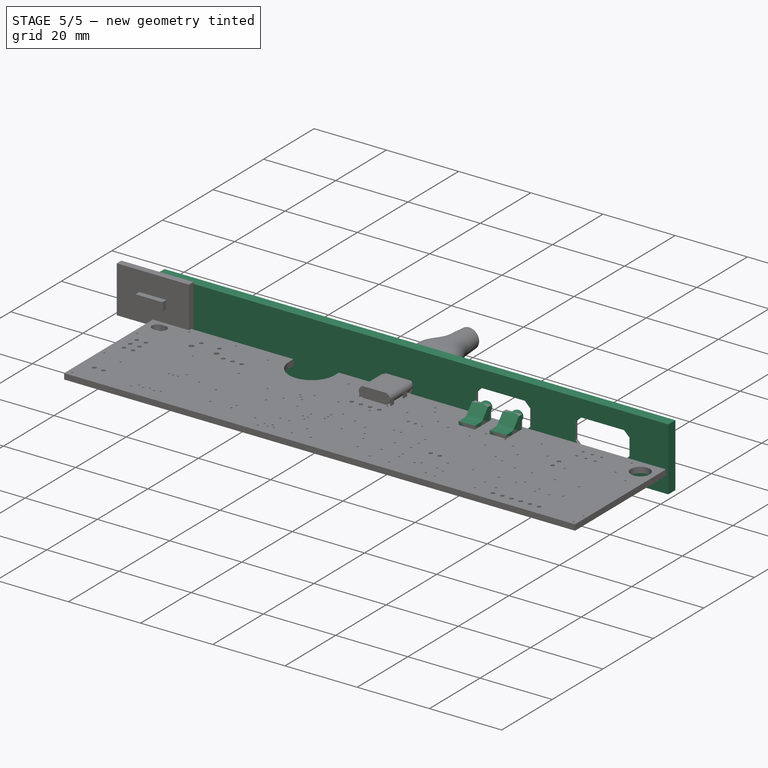
[diagram: stage 5 of 5 — iso view after this stage's code; geometry added in this stage tinted green]
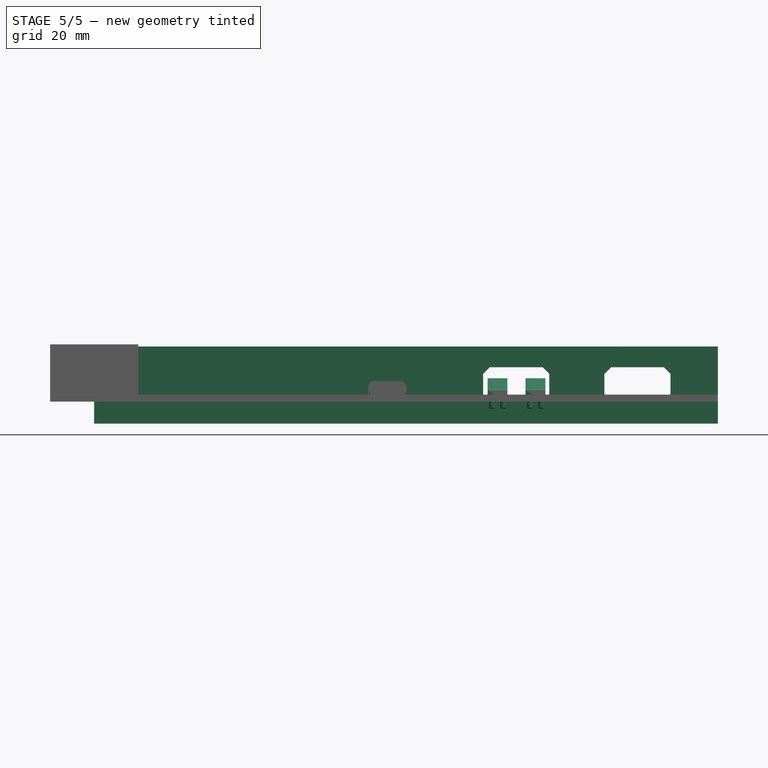
[diagram: stage 5 of 5 — front view after this stage's code; geometry added in this stage tinted green]
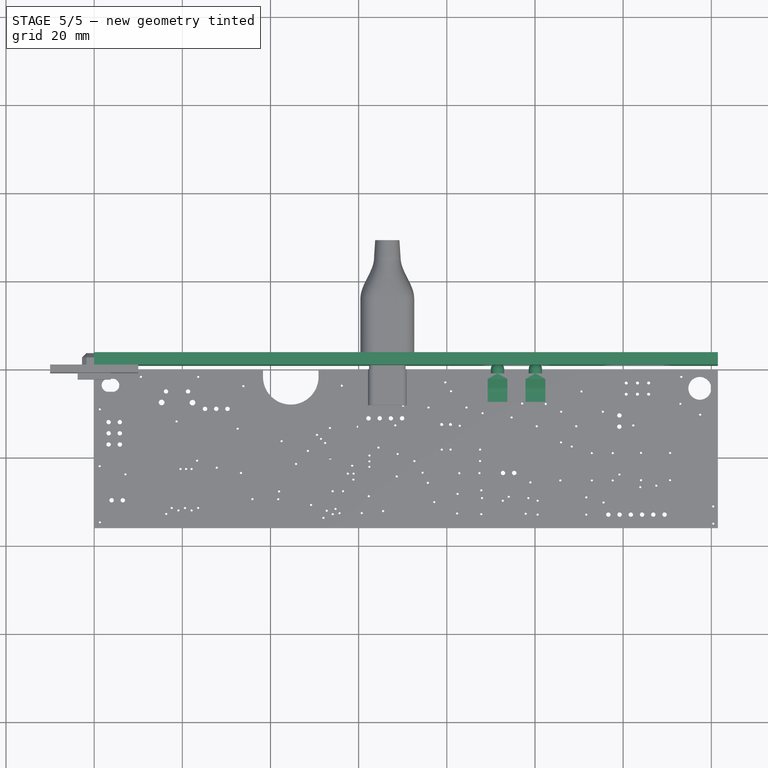
[diagram: stage 5 of 5 — top view after this stage's code; geometry added in this stage tinted green]
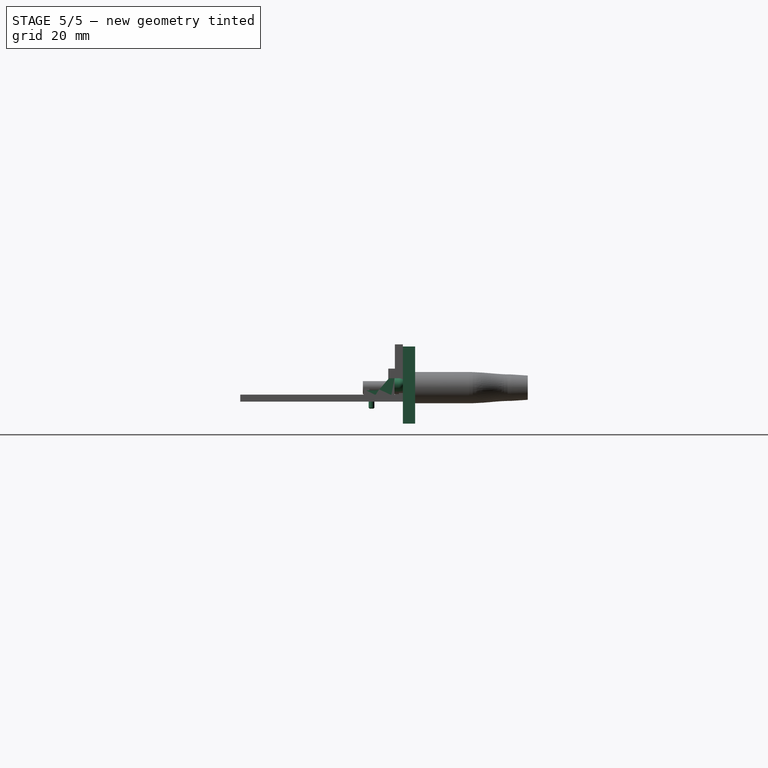
[diagram: stage 5 of 5 — right view after this stage's code; geometry added in this stage tinted green]
FEATURE [PartDesign::Body] Body  label="HHKB_Controller_RevL"
  Group = -> [PCB_Border,Pad,PCB_Holes,Pocket]
  Origin = -> Origin
  Placement = pos=(0,0,-1.6) rot=(0,0,1;0rad)
  Tip = -> Pocket
FEATURE [Sketcher::SketchObject] Sketch  label="RearPlate"
  MapMode = 5
  Placement = pos=(0,0,0) rot=(1,0,0;1.5708rad)
  Support = -> [XZ_Plane001]
  sketch-geometry (4):
    g0: LineSegment StartX=0 StartY=12.5 StartZ=0 EndX=141.5 EndY=12.5 EndZ=0
    g1: LineSegment StartX=141.5 StartY=12.5 StartZ=0 EndX=141.5 EndY=-5 EndZ=0
    g2: LineSegment StartX=141.5 StartY=-5 StartZ=0 EndX=0 EndY=-5 EndZ=0
    g3: LineSegment StartX=0 StartY=-5 StartZ=0 EndX=0 EndY=12.5 EndZ=0
  constraints (12):
    c: Coincident(g0,g1)
    c: Coincident(g1,g2)
    c: Coincident(g2,g3)
    c: Coincident(g3,g0)
    c: Horizontal(g0)
    c: Horizontal(g2)
    c: Vertical(g1)
    c: Vertical(g3)
    c: PointOnObject(g2,g-2)
    c: DistanceY(g2,g-1) = 5  'BottomOffsetZ'
    c: DistanceX(g0,g0) = 141.5  'X'
    c: DistanceY(g-1,g0) = 12.5  'PcbToTopZ'
FEATURE [PartDesign::Pad] Pad001  label="PadRearPlate"
  Length = 2.8
  Length2 = 100
  Placement = pos=(0,0,0) rot=(1,0,0;1.5708rad)
  Profile = -> Sketch
  Reversed = true
  Type = 0
FEATURE [PartDesign::Body] Body004  label="BodyShell"
  Group = -> [Sketch002,Pad003,Chamfer001,Sketch014,Pad010,Sketch019,Pad012,Mirrored002,Chamfer002]
  Origin = -> Origin003
  Tip = -> Chamfer002
FEATURE [App::Part] Part  label="usb-c-shell"
  Group = -> [Body003,Body004]
  License = CC BY 3.0
  LicenseURL = http://creativecommons.org/licenses/by/3.0/
  Origin = -> Origin005
FEATURE [App::VRMLObject] HHKB_controller  label="HHKB_controller-RevL"
  Placement = pos=(0,0,-0.8) rot=(0,0,1;0rad)
FEATURE [App::VRMLObject] usb_type_c_hhkb  label="usb-type-c-hhkb-R3"
  Placement = pos=(0,0,0.8) rot=(0,0,1;0rad)
  Resources = usb_type_c_hhkb/shapes3D/R_0603.wrl
FEATURE [Sketcher::SketchObject] Sketch020  label="Profile"
  MapMode = 5
  Placement = pos=(0,0,0) rot=(0.57735,0.57735,0.57735;2.0944rad)
  Support = -> [YZ_Plane006]
  sketch-geometry (11):
    g0: LineSegment StartX=0 StartY=0 StartZ=0 EndX=0 EndY=5.3 EndZ=0
    g1: LineSegment StartX=0 StartY=5.3 StartZ=0 EndX=-1.25 EndY=5.3 EndZ=0
    g2: LineSegment StartX=-1.25 StartY=5.3 StartZ=0 EndX=-3.1597 EndY=3.06547 EndZ=0
    g3: ArcOfCircle CenterX=-4.3 CenterY=4.04 CenterZ=0 NormalX=0 NormalY=0 NormalZ=1 AngleXU=0 Radius=1.5 StartAngle=4.71239 EndAngle=5.57601
    g4: LineSegment StartX=-4.3 StartY=2.54 StartZ=0 EndX=-6.4 EndY=2.54 EndZ=0
    g5: LineSegment StartX=-6.4 StartY=2.54 StartZ=0 EndX=-6.4 EndY=0 EndZ=0
    g6: LineSegment StartX=-6.4 StartY=0 StartZ=0 EndX=-4.3 EndY=0 EndZ=0
    g7: LineSegment StartX=-4.3 StartY=0 StartZ=0 EndX=-4.3 EndY=1.5 EndZ=0
    g8: LineSegment StartX=-4.3 StartY=1.5 StartZ=0 EndX=-0.7 EndY=1.5 EndZ=0
    g9: LineSegment StartX=-0.7 StartY=1.5 StartZ=0 EndX=-0.7 EndY=0 EndZ=0
    g10: LineSegment StartX=-0.7 StartY=0 StartZ=0 EndX=0 EndY=0 EndZ=0
  constraints (31):
    c: Coincident(g-1,g0)
    c: Vertical(g0)
    c: Coincident(g0,g1)
    c: Horizontal(g1)
    c: Coincident(g1,g2)
    c: Tangent(g2,g3) = 1.5708
    c: Tangent(g3,g4) = 1.5708
    c: Coincident(g4,g5)
    c: PointOnObject(g5,g-1)
    c: Vertical(g5)
    c: Coincident(g5,g6)
    c: Horizontal(g6)
    c: Coincident(g6,g7)
    c: Vertical(g7)
    c: Coincident(g7,g8)
    c: Horizontal(g8)
    c: Coincident(g8,g9)
    c: PointOnObject(g9,g-1)
    c: Vertical(g9)
    c: Coincident(g9,g10)
    c: Coincident(g10,g-1)
    c: Horizontal(g4)
    c: DistanceY(g0,g0) = 5.3  'Z'
    c: DistanceY(g7,g7) = 1.5  'LEDclearanceZ'
    c: DistanceX(g8,g8) = 3.6  'LensClearanceY'
    c: DistanceX(g5,g-1) = 6.4  'Y'
    c: DistanceX(g1,g1) = 1.25  'TopEdge'
    c: DistanceY(g5,g5) = 2.54  'RearZ'
    c: DistanceX(g4,g4) = 2.1  'RearTopY'
    c: DistanceX(g6,g6) = 2.1  'RearBaseY'
    c: Radius(g3) = 1.5  'TopRadius'
FEATURE [Sketcher::SketchObject] Sketch021  label="Lens"
  MapMode = 5
  Placement = pos=(0,0,0) rot=(0.57735,0.57735,0.57735;2.0944rad)
  Support = -> [YZ_Plane006]
  sketch-geometry (5):
    g0: LineSegment StartX=0 StartY=3.8 StartZ=0 EndX=2.54 EndY=3.8 EndZ=0
    g1: ArcOfCircle CenterX=1.04 CenterY=3.8 CenterZ=0 NormalX=0 NormalY=0 NormalZ=1 AngleXU=0 Radius=1.5 StartAngle=0 EndAngle=1.5708
    g2: LineSegment StartX=1.04 StartY=5.3 StartZ=0 EndX=0 EndY=5.3 EndZ=0
    g3: LineSegment StartX=0 StartY=5.3 StartZ=0 EndX=0 EndY=3.8 EndZ=0
    g4: LineSegment [constr] StartX=2.54 StartY=3.8 StartZ=0 EndX=5.08 EndY=3.8 EndZ=0
  constraints (14):
    c: PointOnObject(g0,g-2)
    c: Horizontal(g0)
    c: Perpendicular(g0,g1) = 1.5708
    c: Tangent(g1,g2) = -1.5708
    c: PointOnObject(g2,g-2)
    c: Coincident(g3,g2)
    c: Coincident(g0,g3)
    c: Horizontal(g4)
    c: Coincident(g0,g4)
    c: DistanceY(g0) = 3.8  'CenterOffsetZ'
    c: Horizontal(g2)
    c: DistanceY(g3,g3) = 1.5  'Radius'
    c: DistanceX(g0,g0) = 2.54  'Y'
    c: Equal(g4,g0)
FEATURE [Sketcher::SketchObject] Sketch022  label="Pin"
  MapMode = 5
  Support = -> [XY_Plane006]
  sketch-geometry (1):
    g0: Circle CenterX=-1.27 CenterY=-5.2 CenterZ=0 NormalX=0 NormalY=0 NormalZ=1 AngleXU=0 Radius=0.65
  constraints (3):
    c: Radius(g0) = 0.65  'Radius'
    c: DistanceX(g0,g-1) = 1.27  'OffsetX'
    c: DistanceY(g0,g-1) = 5.2  'OffsetY'
FEATURE [PartDesign::Pad] Pad013  label="PadProfile"
  Length = 4.5
  Length2 = 100
  Midplane = true
  Placement = pos=(0,0,0) rot=(0.57735,0.57735,0.57735;2.0944rad)
  Profile = -> Sketch020
  Type = 0
FEATURE [PartDesign::Revolution] Revolution  label="RevolutionLens"
  Angle = 360
  Axis = (0,2.54,0)
  Base = (0,2.54,3.8)
  BaseFeature = -> Pad013
  Placement = pos=(0,0,0) rot=(0.57735,0.57735,0.57735;2.0944rad)
  Profile = -> Sketch021
  ReferenceAxis = -> Sketch021 [Axis0]
FEATURE [PartDesign::Pad] Pad014  label="PadPin"
  BaseFeature = -> Revolution
  Length = 1.6
  Length2 = 100
  Placement = pos=(0,0,0) rot=(0.57735,0.57735,0.57735;2.0944rad)
  Profile = -> Sketch022
  Reversed = true
  Type = 0
FEATURE [PartDesign::Mirrored] Mirrored003  label="MirroredPin"
  BaseFeature = -> Pad014
  MirrorPlane = -> Sketch022 [V_Axis]
  Originals = -> [Pad014]
  Placement = pos=(0,0,0) rot=(0.57735,0.57735,0.57735;2.0944rad)
FEATURE [PartDesign::Chamfer] Chamfer003  label="ChamferPins"
  Base = -> Mirrored003 [Face19,Face18]
  BaseFeature = -> Mirrored003
  Placement = pos=(0,0,0) rot=(0.57735,0.57735,0.57735;2.0944rad)
  Size = 0.2
FEATURE [PartDesign::Body] Body005  label="SLP3"
  Group = -> [Sketch020,Pad013,Sketch021,Revolution,Sketch022,Pad014,Mirrored003,Chamfer003]
  Origin = -> Origin006
  Tip = -> Chamfer003
FEATURE [Part::FeaturePython] Clone001  label="SLP3-1"  # Draft clone (typed FeaturePython)
  AttacherType = Attacher::AttachEngine3D
  Fuse = false
  Objects = -> [Body005]
  Placement = pos=(91.5,-1,0) rot=(0,0,1;0rad)
  Scale = (1,1,1)
FEATURE [Part::FeaturePython] Clone002  label="SLP3-2"  # Draft clone (typed FeaturePython)
  AttacherType = Attacher::AttachEngine3D
  Fuse = false
  Objects = -> [Body005]
  Placement = pos=(100.1,-1,0) rot=(0,0,1;0rad)
  Scale = (1,1,1)
FEATURE [Part::Cut] Cut
  Base = -> Body001
  Tool = -> Fusion
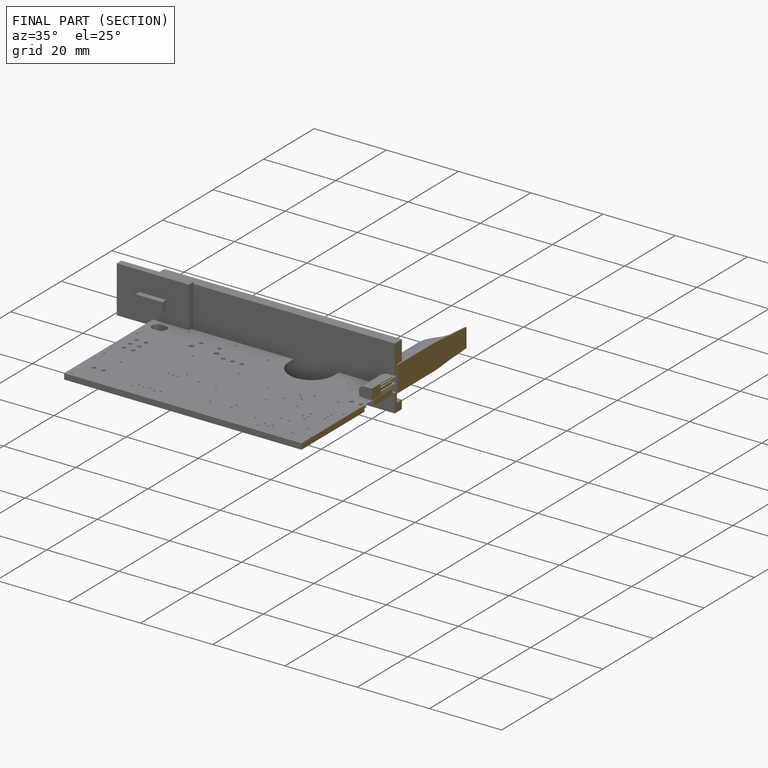
[diagram: finished part — half-section view (interior)]
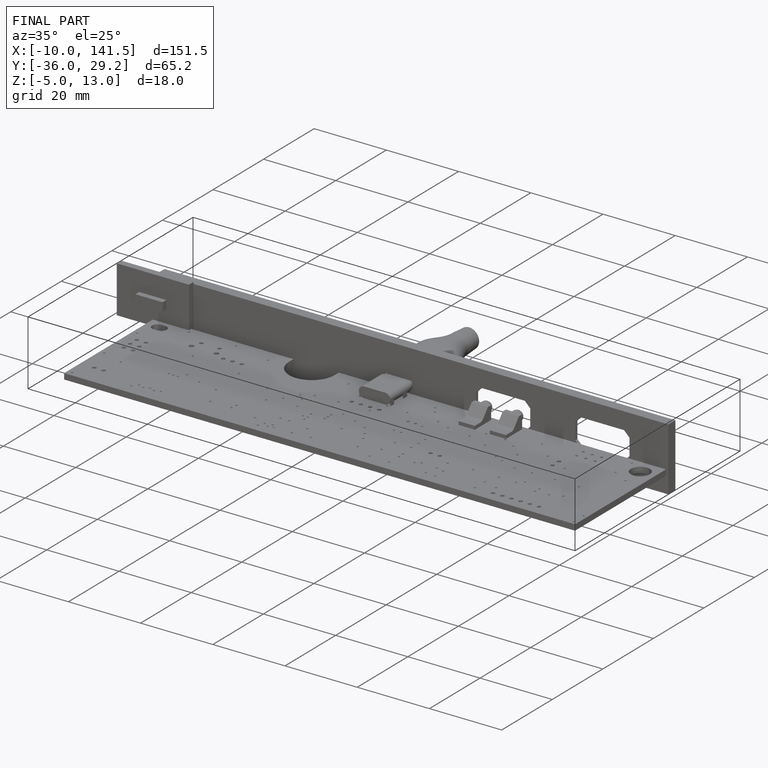
[diagram: finished part — iso view with bounding-box wireframe]
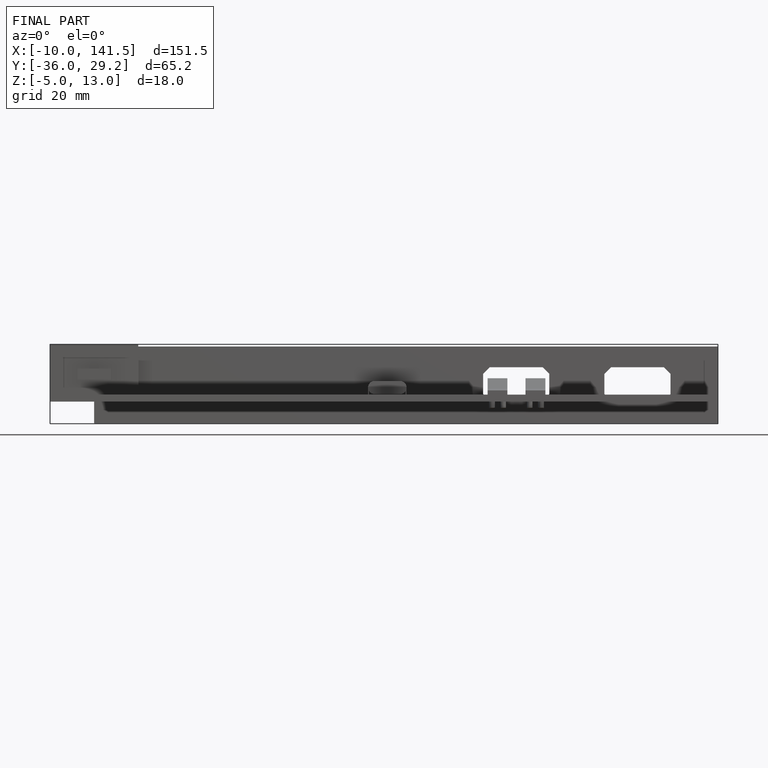
[diagram: finished part — front view with bounding-box wireframe]
